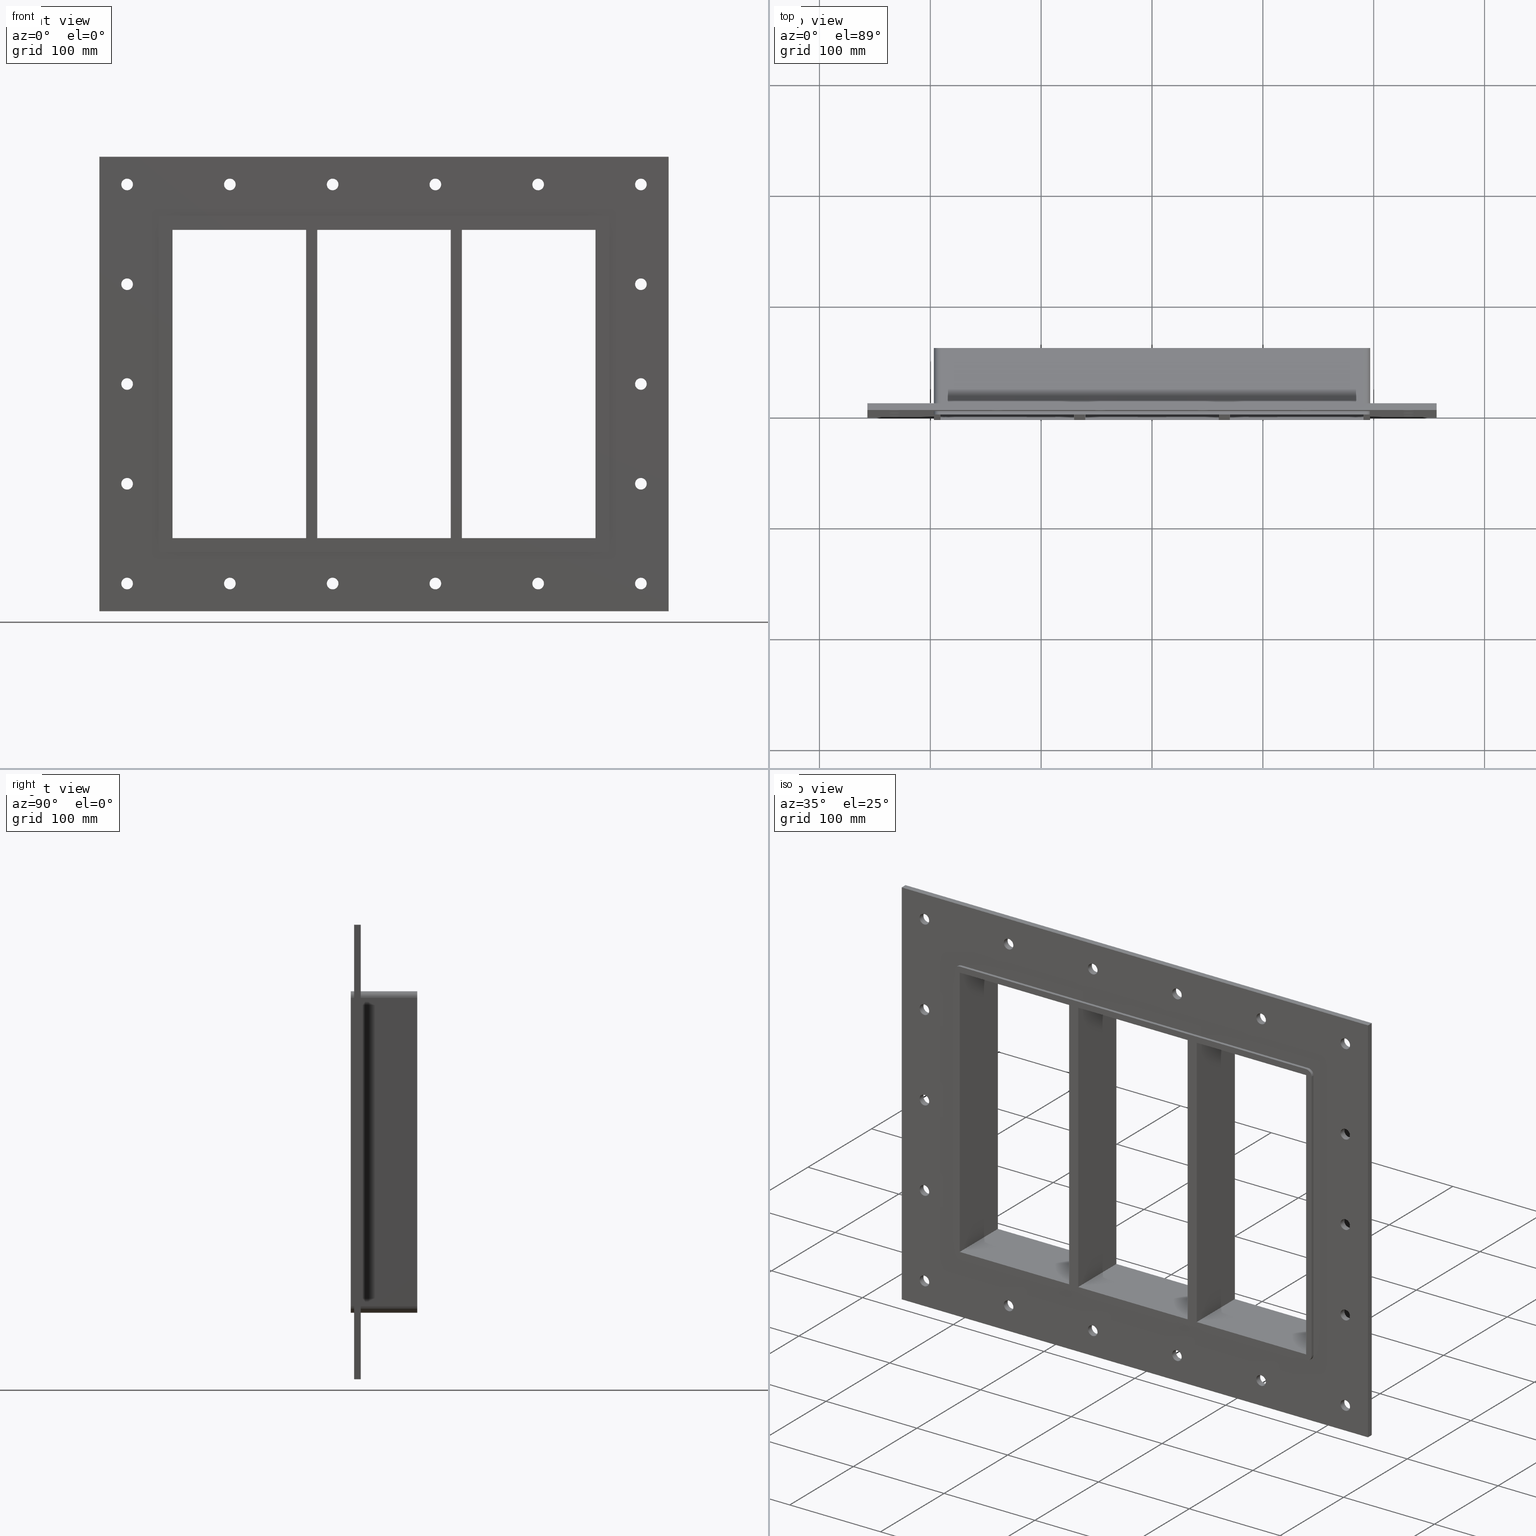
[diagram: canonical four-view strip — front | top / right | iso, engineering-drawing reading convention]
A machine part, canonical four-view strip (front | top / right | iso — engineering-drawing reading convention). The complete STEP part file that produces these views, byte-faithful:
ISO-10303-21;
HEADER;
/****************************************************************
 * Generated by software with PDElib inside                    *
 * PDElib Version v51a, created Wed 11/30/2011                  *
 * ITI Transcendata (http://www.transcendata.com/)              *
 ****************************************************************/
FILE_DESCRIPTION((''),'2;1');
FILE_NAME('N:\\Projects\\Ongoing_Projects\\12403 Transit Designer\\Product-data\\Product Data\\Transit designer Cad Generator\\CreatedFiles\\STEP\\GHM8X3.stp','2015-01-12T11:18:42',(''),(''),'Autodesk Inventor 2013','Autodesk Inventor 2013','');
FILE_SCHEMA(('AUTOMOTIVE_DESIGN { 1 0 10303 214 1 1 1 1 }'));
ENDSEC;
DATA;
#5=APPLICATION_CONTEXT('automotive design');
#6=APPLICATION_PROTOCOL_DEFINITION('International Standard','automotive_design',2001,#5);
#7=PRODUCT_CONTEXT('',#5,'mechanical');
#8=PRODUCT('GHM-ISO','GHM-ISO',$,(#7));
#9=PRODUCT_RELATED_PRODUCT_CATEGORY('part',$,(#8));
#10=PRODUCT_DEFINITION_FORMATION('',$,#8);
#11=PRODUCT_DEFINITION_CONTEXT('part definition',#5,'design');
#12=PRODUCT_DEFINITION('',$,#10,#11);
#18=(NAMED_UNIT(*)PLANE_ANGLE_UNIT()SI_UNIT($,.RADIAN.));
#19=DIMENSIONAL_EXPONENTS(0.0,0.0,0.0,0.0,0.0,0.0,0.0);
#20=PLANE_ANGLE_MEASURE_WITH_UNIT(PLANE_ANGLE_MEASURE(0.0174532925),#18);
#24=(CONVERSION_BASED_UNIT('DEGREE',#20)NAMED_UNIT(#19)PLANE_ANGLE_UNIT());
#28=(NAMED_UNIT(*)SI_UNIT($,.STERADIAN.)SOLID_ANGLE_UNIT());
#32=(LENGTH_UNIT()NAMED_UNIT(*)SI_UNIT(.MILLI.,.METRE.));
#34=UNCERTAINTY_MEASURE_WITH_UNIT(LENGTH_MEASURE(0.01),#32,'DISTANCE_ACCURACY_VALUE','');
#36=(GEOMETRIC_REPRESENTATION_CONTEXT(3)GLOBAL_UNCERTAINTY_ASSIGNED_CONTEXT((#34))GLOBAL_UNIT_ASSIGNED_CONTEXT((#24,#28,#32))REPRESENTATION_CONTEXT('None','None'));
#37=AXIS2_PLACEMENT_3D('',#38,#39,#40);
#38=CARTESIAN_POINT('',(0.0,0.0,0.0));
#39=DIRECTION('',(0.0,0.0,1.0));
#40=DIRECTION('',(1.0,0.0,0.0));
#41=SHAPE_REPRESENTATION('',(#37),#36);
#42=PRODUCT_DEFINITION_SHAPE('','',#12);
#43=SHAPE_DEFINITION_REPRESENTATION(#42,#41);
#49=(NAMED_UNIT(*)PLANE_ANGLE_UNIT()SI_UNIT($,.RADIAN.));
#50=DIMENSIONAL_EXPONENTS(0.0,0.0,0.0,0.0,0.0,0.0,0.0);
#51=PLANE_ANGLE_MEASURE_WITH_UNIT(PLANE_ANGLE_MEASURE(0.0174532925),#49);
#55=(CONVERSION_BASED_UNIT('DEGREE',#51)NAMED_UNIT(#50)PLANE_ANGLE_UNIT());
#59=(NAMED_UNIT(*)SI_UNIT($,.STERADIAN.)SOLID_ANGLE_UNIT());
#63=(LENGTH_UNIT()NAMED_UNIT(*)SI_UNIT(.MILLI.,.METRE.));
#65=UNCERTAINTY_MEASURE_WITH_UNIT(LENGTH_MEASURE(0.000001),#63,'DISTANCE_ACCURACY_VALUE','');
#67=(GEOMETRIC_REPRESENTATION_CONTEXT(3)GLOBAL_UNCERTAINTY_ASSIGNED_CONTEXT((#65))GLOBAL_UNIT_ASSIGNED_CONTEXT((#55,#59,#63))REPRESENTATION_CONTEXT('','3D'));
#68=CARTESIAN_POINT('',(-231.75000000000011,659.8350172581022,-179.99999999999997));
#69=DIRECTION('',(0.0,-1.0,0.0));
#70=DIRECTION('',(1.0,0.0,0.0));
#71=AXIS2_PLACEMENT_3D('',#68,#69,#70);
#72=CYLINDRICAL_SURFACE('',#71,5.25);
#73=CARTESIAN_POINT('',(-237.00000000000011,5.999999999999943,-179.99999999999997));
#74=VERTEX_POINT('',#73);
#75=CARTESIAN_POINT('',(-231.75000000000011,5.999999999999943,-179.99999999999997));
#76=DIRECTION('',(0.0,-1.0,0.0));
#77=DIRECTION('',(1.0,0.0,0.0));
#78=AXIS2_PLACEMENT_3D('',#75,#76,#77);
#79=CIRCLE('',#78,5.25);
#80=EDGE_CURVE('',#74,#74,#79,.T.);
#81=ORIENTED_EDGE('',*,*,#80,.F.);
#82=EDGE_LOOP('',(#81));
#83=FACE_OUTER_BOUND('',#82,.T.);
#84=CARTESIAN_POINT('',(-226.50000000000011,0.0,-179.99999999999997));
#85=VERTEX_POINT('',#84);
#86=CARTESIAN_POINT('',(-231.75000000000011,0.0,-179.99999999999997));
#87=DIRECTION('',(0.0,1.0,0.0));
#88=DIRECTION('',(1.0,0.0,0.0));
#89=AXIS2_PLACEMENT_3D('',#86,#87,#88);
#90=CIRCLE('',#89,5.25);
#91=EDGE_CURVE('',#85,#85,#90,.T.);
#92=ORIENTED_EDGE('',*,*,#91,.F.);
#93=EDGE_LOOP('',(#92));
#94=FACE_BOUND('',#93,.T.);
#95=ADVANCED_FACE('',(#83,#94),#72,.F.);
#96=CARTESIAN_POINT('',(231.74999999999997,659.8350172581022,-89.999999999999972));
#97=DIRECTION('',(0.0,-1.0,0.0));
#98=DIRECTION('',(1.0,0.0,0.0));
#99=AXIS2_PLACEMENT_3D('',#96,#97,#98);
#100=CYLINDRICAL_SURFACE('',#99,5.25);
#101=CARTESIAN_POINT('',(226.5,5.999999999999943,-89.999999999999972));
#102=VERTEX_POINT('',#101);
#103=CARTESIAN_POINT('',(231.74999999999997,5.999999999999943,-89.999999999999972));
#104=DIRECTION('',(0.0,-1.0,0.0));
#105=DIRECTION('',(1.0,0.0,0.0));
#106=AXIS2_PLACEMENT_3D('',#103,#104,#105);
#107=CIRCLE('',#106,5.25);
#108=EDGE_CURVE('',#102,#102,#107,.T.);
#109=ORIENTED_EDGE('',*,*,#108,.F.);
#110=EDGE_LOOP('',(#109));
#111=FACE_OUTER_BOUND('',#110,.T.);
#112=CARTESIAN_POINT('',(236.99999999999994,0.0,-89.999999999999972));
#113=VERTEX_POINT('',#112);
#114=CARTESIAN_POINT('',(231.74999999999997,0.0,-89.999999999999972));
#115=DIRECTION('',(0.0,1.0,0.0));
#116=DIRECTION('',(1.0,0.0,0.0));
#117=AXIS2_PLACEMENT_3D('',#114,#115,#116);
#118=CIRCLE('',#117,5.25);
#119=EDGE_CURVE('',#113,#113,#118,.T.);
#120=ORIENTED_EDGE('',*,*,#119,.F.);
#121=EDGE_LOOP('',(#120));
#122=FACE_BOUND('',#121,.T.);
#123=ADVANCED_FACE('',(#111,#122),#100,.F.);
#124=CARTESIAN_POINT('',(-231.75000000000011,659.8350172581022,-89.999999999999972));
#125=DIRECTION('',(0.0,-1.0,0.0));
#126=DIRECTION('',(1.0,0.0,0.0));
#127=AXIS2_PLACEMENT_3D('',#124,#125,#126);
#128=CYLINDRICAL_SURFACE('',#127,5.25);
#129=CARTESIAN_POINT('',(-237.00000000000011,5.999999999999943,-89.999999999999972));
#130=VERTEX_POINT('',#129);
#131=CARTESIAN_POINT('',(-231.75000000000011,5.999999999999943,-89.999999999999972));
#132=DIRECTION('',(0.0,-1.0,0.0));
#133=DIRECTION('',(1.0,0.0,0.0));
#134=AXIS2_PLACEMENT_3D('',#131,#132,#133);
#135=CIRCLE('',#134,5.25);
#136=EDGE_CURVE('',#130,#130,#135,.T.);
#137=ORIENTED_EDGE('',*,*,#136,.F.);
#138=EDGE_LOOP('',(#137));
#139=FACE_OUTER_BOUND('',#138,.T.);
#140=CARTESIAN_POINT('',(-226.50000000000011,0.0,-89.999999999999972));
#141=VERTEX_POINT('',#140);
#142=CARTESIAN_POINT('',(-231.75000000000011,0.0,-89.999999999999972));
#143=DIRECTION('',(0.0,1.0,0.0));
#144=DIRECTION('',(1.0,0.0,0.0));
#145=AXIS2_PLACEMENT_3D('',#142,#143,#144);
#146=CIRCLE('',#145,5.25);
#147=EDGE_CURVE('',#141,#141,#146,.T.);
#148=ORIENTED_EDGE('',*,*,#147,.F.);
#149=EDGE_LOOP('',(#148));
#150=FACE_BOUND('',#149,.T.);
#151=ADVANCED_FACE('',(#139,#150),#128,.F.);
#152=CARTESIAN_POINT('',(231.74999999999997,659.8350172581022,3.552714E-014));
#153=DIRECTION('',(0.0,-1.0,0.0));
#154=DIRECTION('',(1.0,0.0,0.0));
#155=AXIS2_PLACEMENT_3D('',#152,#153,#154);
#156=CYLINDRICAL_SURFACE('',#155,5.25);
#157=CARTESIAN_POINT('',(226.5,5.999999999999943,3.552714E-014));
#158=VERTEX_POINT('',#157);
#159=CARTESIAN_POINT('',(231.74999999999997,5.999999999999943,3.552714E-014));
#160=DIRECTION('',(0.0,-1.0,0.0));
#161=DIRECTION('',(1.0,0.0,0.0));
#162=AXIS2_PLACEMENT_3D('',#159,#160,#161);
#163=CIRCLE('',#162,5.25);
#164=EDGE_CURVE('',#158,#158,#163,.T.);
#165=ORIENTED_EDGE('',*,*,#164,.F.);
#166=EDGE_LOOP('',(#165));
#167=FACE_OUTER_BOUND('',#166,.T.);
#168=CARTESIAN_POINT('',(236.99999999999994,0.0,3.552714E-014));
#169=VERTEX_POINT('',#168);
#170=CARTESIAN_POINT('',(231.74999999999997,0.0,3.552714E-014));
#171=DIRECTION('',(0.0,1.0,0.0));
#172=DIRECTION('',(1.0,0.0,0.0));
#173=AXIS2_PLACEMENT_3D('',#170,#171,#172);
#174=CIRCLE('',#173,5.25);
#175=EDGE_CURVE('',#169,#169,#174,.T.);
#176=ORIENTED_EDGE('',*,*,#175,.F.);
#177=EDGE_LOOP('',(#176));
#178=FACE_BOUND('',#177,.T.);
#179=ADVANCED_FACE('',(#167,#178),#156,.F.);
#180=CARTESIAN_POINT('',(-231.75000000000011,659.8350172581022,3.552714E-014));
#181=DIRECTION('',(0.0,-1.0,0.0));
#182=DIRECTION('',(1.0,0.0,0.0));
#183=AXIS2_PLACEMENT_3D('',#180,#181,#182);
#184=CYLINDRICAL_SURFACE('',#183,5.25);
#185=CARTESIAN_POINT('',(-237.00000000000011,5.999999999999943,3.552714E-014));
#186=VERTEX_POINT('',#185);
#187=CARTESIAN_POINT('',(-231.75000000000011,5.999999999999943,3.552714E-014));
#188=DIRECTION('',(0.0,-1.0,0.0));
#189=DIRECTION('',(1.0,0.0,0.0));
#190=AXIS2_PLACEMENT_3D('',#187,#188,#189);
#191=CIRCLE('',#190,5.25);
#192=EDGE_CURVE('',#186,#186,#191,.T.);
#193=ORIENTED_EDGE('',*,*,#192,.F.);
#194=EDGE_LOOP('',(#193));
#195=FACE_OUTER_BOUND('',#194,.T.);
#196=CARTESIAN_POINT('',(-226.50000000000011,0.0,3.552714E-014));
#197=VERTEX_POINT('',#196);
#198=CARTESIAN_POINT('',(-231.75000000000011,0.0,3.552714E-014));
#199=DIRECTION('',(0.0,1.0,0.0));
#200=DIRECTION('',(1.0,0.0,0.0));
#201=AXIS2_PLACEMENT_3D('',#198,#199,#200);
#202=CIRCLE('',#201,5.25);
#203=EDGE_CURVE('',#197,#197,#202,.T.);
#204=ORIENTED_EDGE('',*,*,#203,.F.);
#205=EDGE_LOOP('',(#204));
#206=FACE_BOUND('',#205,.T.);
#207=ADVANCED_FACE('',(#195,#206),#184,.F.);
#208=CARTESIAN_POINT('',(231.74999999999997,659.8350172581022,90.000000000000028));
#209=DIRECTION('',(0.0,-1.0,0.0));
#210=DIRECTION('',(1.0,0.0,0.0));
#211=AXIS2_PLACEMENT_3D('',#208,#209,#210);
#212=CYLINDRICAL_SURFACE('',#211,5.25);
#213=CARTESIAN_POINT('',(226.5,5.999999999999943,90.000000000000028));
#214=VERTEX_POINT('',#213);
#215=CARTESIAN_POINT('',(231.74999999999997,5.999999999999943,90.000000000000028));
#216=DIRECTION('',(0.0,-1.0,0.0));
#217=DIRECTION('',(1.0,0.0,0.0));
#218=AXIS2_PLACEMENT_3D('',#215,#216,#217);
#219=CIRCLE('',#218,5.25);
#220=EDGE_CURVE('',#214,#214,#219,.T.);
#221=ORIENTED_EDGE('',*,*,#220,.F.);
#222=EDGE_LOOP('',(#221));
#223=FACE_OUTER_BOUND('',#222,.T.);
#224=CARTESIAN_POINT('',(236.99999999999994,0.0,90.000000000000028));
#225=VERTEX_POINT('',#224);
#226=CARTESIAN_POINT('',(231.74999999999997,0.0,90.000000000000028));
#227=DIRECTION('',(0.0,1.0,0.0));
#228=DIRECTION('',(1.0,0.0,0.0));
#229=AXIS2_PLACEMENT_3D('',#226,#227,#228);
#230=CIRCLE('',#229,5.25);
#231=EDGE_CURVE('',#225,#225,#230,.T.);
#232=ORIENTED_EDGE('',*,*,#231,.F.);
#233=EDGE_LOOP('',(#232));
#234=FACE_BOUND('',#233,.T.);
#235=ADVANCED_FACE('',(#223,#234),#212,.F.);
#236=CARTESIAN_POINT('',(-231.75000000000011,659.8350172581022,90.000000000000028));
#237=DIRECTION('',(0.0,-1.0,0.0));
#238=DIRECTION('',(1.0,0.0,0.0));
#239=AXIS2_PLACEMENT_3D('',#236,#237,#238);
#240=CYLINDRICAL_SURFACE('',#239,5.25);
#241=CARTESIAN_POINT('',(-237.00000000000011,5.999999999999943,90.000000000000028));
#242=VERTEX_POINT('',#241);
#243=CARTESIAN_POINT('',(-231.75000000000011,5.999999999999943,90.000000000000028));
#244=DIRECTION('',(0.0,-1.0,0.0));
#245=DIRECTION('',(1.0,0.0,0.0));
#246=AXIS2_PLACEMENT_3D('',#243,#244,#245);
#247=CIRCLE('',#246,5.25);
#248=EDGE_CURVE('',#242,#242,#247,.T.);
#249=ORIENTED_EDGE('',*,*,#248,.F.);
#250=EDGE_LOOP('',(#249));
#251=FACE_OUTER_BOUND('',#250,.T.);
#252=CARTESIAN_POINT('',(-226.50000000000011,0.0,90.000000000000028));
#253=VERTEX_POINT('',#252);
#254=CARTESIAN_POINT('',(-231.75000000000011,0.0,90.000000000000028));
#255=DIRECTION('',(0.0,1.0,0.0));
#256=DIRECTION('',(1.0,0.0,0.0));
#257=AXIS2_PLACEMENT_3D('',#254,#255,#256);
#258=CIRCLE('',#257,5.25);
#259=EDGE_CURVE('',#253,#253,#258,.T.);
#260=ORIENTED_EDGE('',*,*,#259,.F.);
#261=EDGE_LOOP('',(#260));
#262=FACE_BOUND('',#261,.T.);
#263=ADVANCED_FACE('',(#251,#262),#240,.F.);
#264=CARTESIAN_POINT('',(-139.05000000000007,659.8350172581022,180.00000000000003));
#265=DIRECTION('',(0.0,-1.0,0.0));
#266=DIRECTION('',(1.0,0.0,0.0));
#267=AXIS2_PLACEMENT_3D('',#264,#265,#266);
#268=CYLINDRICAL_SURFACE('',#267,5.25);
#269=CARTESIAN_POINT('',(-144.30000000000004,5.999999999999943,180.00000000000003));
#270=VERTEX_POINT('',#269);
#271=CARTESIAN_POINT('',(-139.05000000000007,5.999999999999943,180.00000000000003));
#272=DIRECTION('',(0.0,-1.0,0.0));
#273=DIRECTION('',(1.0,0.0,0.0));
#274=AXIS2_PLACEMENT_3D('',#271,#272,#273);
#275=CIRCLE('',#274,5.25);
#276=EDGE_CURVE('',#270,#270,#275,.T.);
#277=ORIENTED_EDGE('',*,*,#276,.F.);
#278=EDGE_LOOP('',(#277));
#279=FACE_OUTER_BOUND('',#278,.T.);
#280=CARTESIAN_POINT('',(-133.80000000000007,0.0,180.00000000000003));
#281=VERTEX_POINT('',#280);
#282=CARTESIAN_POINT('',(-139.05000000000007,0.0,180.00000000000003));
#283=DIRECTION('',(0.0,1.0,0.0));
#284=DIRECTION('',(1.0,0.0,0.0));
#285=AXIS2_PLACEMENT_3D('',#282,#283,#284);
#286=CIRCLE('',#285,5.25);
#287=EDGE_CURVE('',#281,#281,#286,.T.);
#288=ORIENTED_EDGE('',*,*,#287,.F.);
#289=EDGE_LOOP('',(#288));
#290=FACE_BOUND('',#289,.T.);
#291=ADVANCED_FACE('',(#279,#290),#268,.F.);
#292=CARTESIAN_POINT('',(-139.05000000000007,659.8350172581022,-179.99999999999997));
#293=DIRECTION('',(0.0,-1.0,0.0));
#294=DIRECTION('',(1.0,0.0,0.0));
#295=AXIS2_PLACEMENT_3D('',#292,#293,#294);
#296=CYLINDRICAL_SURFACE('',#295,5.25);
#297=CARTESIAN_POINT('',(-144.30000000000004,5.999999999999943,-179.99999999999997));
#298=VERTEX_POINT('',#297);
#299=CARTESIAN_POINT('',(-139.05000000000007,5.999999999999943,-179.99999999999997));
#300=DIRECTION('',(0.0,-1.0,0.0));
#301=DIRECTION('',(1.0,0.0,0.0));
#302=AXIS2_PLACEMENT_3D('',#299,#300,#301);
#303=CIRCLE('',#302,5.25);
#304=EDGE_CURVE('',#298,#298,#303,.T.);
#305=ORIENTED_EDGE('',*,*,#304,.F.);
#306=EDGE_LOOP('',(#305));
#307=FACE_OUTER_BOUND('',#306,.T.);
#308=CARTESIAN_POINT('',(-133.80000000000007,0.0,-179.99999999999997));
#309=VERTEX_POINT('',#308);
#310=CARTESIAN_POINT('',(-139.05000000000007,0.0,-179.99999999999997));
#311=DIRECTION('',(0.0,1.0,0.0));
#312=DIRECTION('',(1.0,0.0,0.0));
#313=AXIS2_PLACEMENT_3D('',#310,#311,#312);
#314=CIRCLE('',#313,5.25);
#315=EDGE_CURVE('',#309,#309,#314,.T.);
#316=ORIENTED_EDGE('',*,*,#315,.F.);
#317=EDGE_LOOP('',(#316));
#318=FACE_BOUND('',#317,.T.);
#319=ADVANCED_FACE('',(#307,#318),#296,.F.);
#320=CARTESIAN_POINT('',(-46.350000000000037,659.8350172581022,180.00000000000003));
#321=DIRECTION('',(0.0,-1.0,0.0));
#322=DIRECTION('',(1.0,0.0,0.0));
#323=AXIS2_PLACEMENT_3D('',#320,#321,#322);
#324=CYLINDRICAL_SURFACE('',#323,5.25);
#325=CARTESIAN_POINT('',(-51.600000000000023,5.999999999999943,180.00000000000003));
#326=VERTEX_POINT('',#325);
#327=CARTESIAN_POINT('',(-46.350000000000037,5.999999999999943,180.00000000000003));
#328=DIRECTION('',(0.0,-1.0,0.0));
#329=DIRECTION('',(1.0,0.0,0.0));
#330=AXIS2_PLACEMENT_3D('',#327,#328,#329);
#331=CIRCLE('',#330,5.25);
#332=EDGE_CURVE('',#326,#326,#331,.T.);
#333=ORIENTED_EDGE('',*,*,#332,.F.);
#334=EDGE_LOOP('',(#333));
#335=FACE_OUTER_BOUND('',#334,.T.);
#336=CARTESIAN_POINT('',(-41.100000000000051,0.0,180.00000000000003));
#337=VERTEX_POINT('',#336);
#338=CARTESIAN_POINT('',(-46.350000000000037,0.0,180.00000000000003));
#339=DIRECTION('',(0.0,1.0,0.0));
#340=DIRECTION('',(1.0,0.0,0.0));
#341=AXIS2_PLACEMENT_3D('',#338,#339,#340);
#342=CIRCLE('',#341,5.25);
#343=EDGE_CURVE('',#337,#337,#342,.T.);
#344=ORIENTED_EDGE('',*,*,#343,.F.);
#345=EDGE_LOOP('',(#344));
#346=FACE_BOUND('',#345,.T.);
#347=ADVANCED_FACE('',(#335,#346),#324,.F.);
#348=CARTESIAN_POINT('',(-46.350000000000037,659.8350172581022,-179.99999999999997));
#349=DIRECTION('',(0.0,-1.0,0.0));
#350=DIRECTION('',(1.0,0.0,0.0));
#351=AXIS2_PLACEMENT_3D('',#348,#349,#350);
#352=CYLINDRICAL_SURFACE('',#351,5.25);
#353=CARTESIAN_POINT('',(-51.600000000000023,5.999999999999943,-179.99999999999997));
#354=VERTEX_POINT('',#353);
#355=CARTESIAN_POINT('',(-46.350000000000037,5.999999999999943,-179.99999999999997));
#356=DIRECTION('',(0.0,-1.0,0.0));
#357=DIRECTION('',(1.0,0.0,0.0));
#358=AXIS2_PLACEMENT_3D('',#355,#356,#357);
#359=CIRCLE('',#358,5.25);
#360=EDGE_CURVE('',#354,#354,#359,.T.);
#361=ORIENTED_EDGE('',*,*,#360,.F.);
#362=EDGE_LOOP('',(#361));
#363=FACE_OUTER_BOUND('',#362,.T.);
#364=CARTESIAN_POINT('',(-41.100000000000051,0.0,-179.99999999999997));
#365=VERTEX_POINT('',#364);
#366=CARTESIAN_POINT('',(-46.350000000000037,0.0,-179.99999999999997));
#367=DIRECTION('',(0.0,1.0,0.0));
#368=DIRECTION('',(1.0,0.0,0.0));
#369=AXIS2_PLACEMENT_3D('',#366,#367,#368);
#370=CIRCLE('',#369,5.25);
#371=EDGE_CURVE('',#365,#365,#370,.T.);
#372=ORIENTED_EDGE('',*,*,#371,.F.);
#373=EDGE_LOOP('',(#372));
#374=FACE_BOUND('',#373,.T.);
#375=ADVANCED_FACE('',(#363,#374),#352,.F.);
#376=CARTESIAN_POINT('',(46.349999999999945,659.8350172581022,180.00000000000003));
#377=DIRECTION('',(0.0,-1.0,0.0));
#378=DIRECTION('',(1.0,0.0,0.0));
#379=AXIS2_PLACEMENT_3D('',#376,#377,#378);
#380=CYLINDRICAL_SURFACE('',#379,5.25);
#381=CARTESIAN_POINT('',(41.099999999999959,5.999999999999943,180.00000000000003));
#382=VERTEX_POINT('',#381);
#383=CARTESIAN_POINT('',(46.349999999999945,5.999999999999943,180.00000000000003));
#384=DIRECTION('',(0.0,-1.0,0.0));
#385=DIRECTION('',(1.0,0.0,0.0));
#386=AXIS2_PLACEMENT_3D('',#383,#384,#385);
#387=CIRCLE('',#386,5.25);
#388=EDGE_CURVE('',#382,#382,#387,.T.);
#389=ORIENTED_EDGE('',*,*,#388,.F.);
#390=EDGE_LOOP('',(#389));
#391=FACE_OUTER_BOUND('',#390,.T.);
#392=CARTESIAN_POINT('',(51.59999999999993,0.0,180.00000000000003));
#393=VERTEX_POINT('',#392);
#394=CARTESIAN_POINT('',(46.349999999999945,0.0,180.00000000000003));
#395=DIRECTION('',(0.0,1.0,0.0));
#396=DIRECTION('',(1.0,0.0,0.0));
#397=AXIS2_PLACEMENT_3D('',#394,#395,#396);
#398=CIRCLE('',#397,5.25);
#399=EDGE_CURVE('',#393,#393,#398,.T.);
#400=ORIENTED_EDGE('',*,*,#399,.F.);
#401=EDGE_LOOP('',(#400));
#402=FACE_BOUND('',#401,.T.);
#403=ADVANCED_FACE('',(#391,#402),#380,.F.);
#404=CARTESIAN_POINT('',(46.349999999999945,659.8350172581022,-179.99999999999997));
#405=DIRECTION('',(0.0,-1.0,0.0));
#406=DIRECTION('',(1.0,0.0,0.0));
#407=AXIS2_PLACEMENT_3D('',#404,#405,#406);
#408=CYLINDRICAL_SURFACE('',#407,5.25);
#409=CARTESIAN_POINT('',(41.099999999999959,5.999999999999943,-179.99999999999997));
#410=VERTEX_POINT('',#409);
#411=CARTESIAN_POINT('',(46.349999999999945,5.999999999999943,-179.99999999999997));
#412=DIRECTION('',(0.0,-1.0,0.0));
#413=DIRECTION('',(1.0,0.0,0.0));
#414=AXIS2_PLACEMENT_3D('',#411,#412,#413);
#415=CIRCLE('',#414,5.25);
#416=EDGE_CURVE('',#410,#410,#415,.T.);
#417=ORIENTED_EDGE('',*,*,#416,.F.);
#418=EDGE_LOOP('',(#417));
#419=FACE_OUTER_BOUND('',#418,.T.);
#420=CARTESIAN_POINT('',(51.59999999999993,0.0,-179.99999999999997));
#421=VERTEX_POINT('',#420);
#422=CARTESIAN_POINT('',(46.349999999999945,0.0,-179.99999999999997));
#423=DIRECTION('',(0.0,1.0,0.0));
#424=DIRECTION('',(1.0,0.0,0.0));
#425=AXIS2_PLACEMENT_3D('',#422,#423,#424);
#426=CIRCLE('',#425,5.25);
#427=EDGE_CURVE('',#421,#421,#426,.T.);
#428=ORIENTED_EDGE('',*,*,#427,.F.);
#429=EDGE_LOOP('',(#428));
#430=FACE_BOUND('',#429,.T.);
#431=ADVANCED_FACE('',(#419,#430),#408,.F.);
#432=CARTESIAN_POINT('',(139.04999999999995,659.8350172581022,180.00000000000003));
#433=DIRECTION('',(0.0,-1.0,0.0));
#434=DIRECTION('',(1.0,0.0,0.0));
#435=AXIS2_PLACEMENT_3D('',#432,#433,#434);
#436=CYLINDRICAL_SURFACE('',#435,5.25);
#437=CARTESIAN_POINT('',(133.79999999999998,5.999999999999943,180.00000000000003));
#438=VERTEX_POINT('',#437);
#439=CARTESIAN_POINT('',(139.04999999999995,5.999999999999943,180.00000000000003));
#440=DIRECTION('',(0.0,-1.0,0.0));
#441=DIRECTION('',(1.0,0.0,0.0));
#442=AXIS2_PLACEMENT_3D('',#439,#440,#441);
#443=CIRCLE('',#442,5.25);
#444=EDGE_CURVE('',#438,#438,#443,.T.);
#445=ORIENTED_EDGE('',*,*,#444,.F.);
#446=EDGE_LOOP('',(#445));
#447=FACE_OUTER_BOUND('',#446,.T.);
#448=CARTESIAN_POINT('',(144.29999999999995,0.0,180.00000000000003));
#449=VERTEX_POINT('',#448);
#450=CARTESIAN_POINT('',(139.04999999999995,0.0,180.00000000000003));
#451=DIRECTION('',(0.0,1.0,0.0));
#452=DIRECTION('',(1.0,0.0,0.0));
#453=AXIS2_PLACEMENT_3D('',#450,#451,#452);
#454=CIRCLE('',#453,5.25);
#455=EDGE_CURVE('',#449,#449,#454,.T.);
#456=ORIENTED_EDGE('',*,*,#455,.F.);
#457=EDGE_LOOP('',(#456));
#458=FACE_BOUND('',#457,.T.);
#459=ADVANCED_FACE('',(#447,#458),#436,.F.);
#460=CARTESIAN_POINT('',(139.04999999999995,659.8350172581022,-179.99999999999997));
#461=DIRECTION('',(0.0,-1.0,0.0));
#462=DIRECTION('',(1.0,0.0,0.0));
#463=AXIS2_PLACEMENT_3D('',#460,#461,#462);
#464=CYLINDRICAL_SURFACE('',#463,5.25);
#465=CARTESIAN_POINT('',(133.79999999999998,5.999999999999943,-179.99999999999997));
#466=VERTEX_POINT('',#465);
#467=CARTESIAN_POINT('',(139.04999999999995,5.999999999999943,-179.99999999999997));
#468=DIRECTION('',(0.0,-1.0,0.0));
#469=DIRECTION('',(1.0,0.0,0.0));
#470=AXIS2_PLACEMENT_3D('',#467,#468,#469);
#471=CIRCLE('',#470,5.25);
#472=EDGE_CURVE('',#466,#466,#471,.T.);
#473=ORIENTED_EDGE('',*,*,#472,.F.);
#474=EDGE_LOOP('',(#473));
#475=FACE_OUTER_BOUND('',#474,.T.);
#476=CARTESIAN_POINT('',(144.29999999999995,0.0,-179.99999999999997));
#477=VERTEX_POINT('',#476);
#478=CARTESIAN_POINT('',(139.04999999999995,0.0,-179.99999999999997));
#479=DIRECTION('',(0.0,1.0,0.0));
#480=DIRECTION('',(1.0,0.0,0.0));
#481=AXIS2_PLACEMENT_3D('',#478,#479,#480);
#482=CIRCLE('',#481,5.25);
#483=EDGE_CURVE('',#477,#477,#482,.T.);
#484=ORIENTED_EDGE('',*,*,#483,.F.);
#485=EDGE_LOOP('',(#484));
#486=FACE_BOUND('',#485,.T.);
#487=ADVANCED_FACE('',(#475,#486),#464,.F.);
#488=CARTESIAN_POINT('',(231.74999999999997,659.8350172581022,-179.99999999999997));
#489=DIRECTION('',(0.0,-1.0,0.0));
#490=DIRECTION('',(1.0,0.0,0.0));
#491=AXIS2_PLACEMENT_3D('',#488,#489,#490);
#492=CYLINDRICAL_SURFACE('',#491,5.25);
#493=CARTESIAN_POINT('',(226.5,5.999999999999943,-179.99999999999997));
#494=VERTEX_POINT('',#493);
#495=CARTESIAN_POINT('',(231.74999999999997,5.999999999999943,-179.99999999999997));
#496=DIRECTION('',(0.0,-1.0,0.0));
#497=DIRECTION('',(1.0,0.0,0.0));
#498=AXIS2_PLACEMENT_3D('',#495,#496,#497);
#499=CIRCLE('',#498,5.25);
#500=EDGE_CURVE('',#494,#494,#499,.T.);
#501=ORIENTED_EDGE('',*,*,#500,.F.);
#502=EDGE_LOOP('',(#501));
#503=FACE_OUTER_BOUND('',#502,.T.);
#504=CARTESIAN_POINT('',(236.99999999999994,0.0,-179.99999999999997));
#505=VERTEX_POINT('',#504);
#506=CARTESIAN_POINT('',(231.74999999999997,0.0,-179.99999999999997));
#507=DIRECTION('',(0.0,1.0,0.0));
#508=DIRECTION('',(1.0,0.0,0.0));
#509=AXIS2_PLACEMENT_3D('',#506,#507,#508);
#510=CIRCLE('',#509,5.25);
#511=EDGE_CURVE('',#505,#505,#510,.T.);
#512=ORIENTED_EDGE('',*,*,#511,.F.);
#513=EDGE_LOOP('',(#512));
#514=FACE_BOUND('',#513,.T.);
#515=ADVANCED_FACE('',(#503,#514),#492,.F.);
#516=CARTESIAN_POINT('',(-231.75000000000011,659.8350172581022,180.00000000000003));
#517=DIRECTION('',(0.0,-1.0,0.0));
#518=DIRECTION('',(1.0,0.0,0.0));
#519=AXIS2_PLACEMENT_3D('',#516,#517,#518);
#520=CYLINDRICAL_SURFACE('',#519,5.25);
#521=CARTESIAN_POINT('',(-237.00000000000011,5.999999999999943,180.00000000000003));
#522=VERTEX_POINT('',#521);
#523=CARTESIAN_POINT('',(-231.75000000000011,5.999999999999943,180.00000000000003));
#524=DIRECTION('',(0.0,-1.0,0.0));
#525=DIRECTION('',(1.0,0.0,0.0));
#526=AXIS2_PLACEMENT_3D('',#523,#524,#525);
#527=CIRCLE('',#526,5.25);
#528=EDGE_CURVE('',#522,#522,#527,.T.);
#529=ORIENTED_EDGE('',*,*,#528,.F.);
#530=EDGE_LOOP('',(#529));
#531=FACE_OUTER_BOUND('',#530,.T.);
#532=CARTESIAN_POINT('',(-226.50000000000011,0.0,180.00000000000003));
#533=VERTEX_POINT('',#532);
#534=CARTESIAN_POINT('',(-231.75000000000011,0.0,180.00000000000003));
#535=DIRECTION('',(0.0,1.0,0.0));
#536=DIRECTION('',(1.0,0.0,0.0));
#537=AXIS2_PLACEMENT_3D('',#534,#535,#536);
#538=CIRCLE('',#537,5.25);
#539=EDGE_CURVE('',#533,#533,#538,.T.);
#540=ORIENTED_EDGE('',*,*,#539,.F.);
#541=EDGE_LOOP('',(#540));
#542=FACE_BOUND('',#541,.T.);
#543=ADVANCED_FACE('',(#531,#542),#520,.F.);
#544=CARTESIAN_POINT('',(231.74999999999997,659.8350172581022,180.00000000000003));
#545=DIRECTION('',(0.0,-1.0,0.0));
#546=DIRECTION('',(1.0,0.0,0.0));
#547=AXIS2_PLACEMENT_3D('',#544,#545,#546);
#548=CYLINDRICAL_SURFACE('',#547,5.25);
#549=CARTESIAN_POINT('',(226.5,5.999999999999943,180.00000000000003));
#550=VERTEX_POINT('',#549);
#551=CARTESIAN_POINT('',(231.74999999999997,5.999999999999943,180.00000000000003));
#552=DIRECTION('',(0.0,-1.0,0.0));
#553=DIRECTION('',(1.0,0.0,0.0));
#554=AXIS2_PLACEMENT_3D('',#551,#552,#553);
#555=CIRCLE('',#554,5.25);
#556=EDGE_CURVE('',#550,#550,#555,.T.);
#557=ORIENTED_EDGE('',*,*,#556,.F.);
#558=EDGE_LOOP('',(#557));
#559=FACE_OUTER_BOUND('',#558,.T.);
#560=CARTESIAN_POINT('',(236.99999999999994,0.0,180.00000000000003));
#561=VERTEX_POINT('',#560);
#562=CARTESIAN_POINT('',(231.74999999999997,0.0,180.00000000000003));
#563=DIRECTION('',(0.0,1.0,0.0));
#564=DIRECTION('',(1.0,0.0,0.0));
#565=AXIS2_PLACEMENT_3D('',#562,#563,#564);
#566=CIRCLE('',#565,5.25);
#567=EDGE_CURVE('',#561,#561,#566,.T.);
#568=ORIENTED_EDGE('',*,*,#567,.F.);
#569=EDGE_LOOP('',(#568));
#570=FACE_BOUND('',#569,.T.);
#571=ADVANCED_FACE('',(#559,#570),#548,.F.);
#572=CARTESIAN_POINT('',(60.249999999998636,-3.0,-139.0));
#573=DIRECTION('',(-1.0,0.0,0.0));
#574=DIRECTION('',(0.0,0.0,1.0));
#575=AXIS2_PLACEMENT_3D('',#572,#573,#574);
#576=PLANE('',#575);
#577=CARTESIAN_POINT('',(60.249999999998636,-3.0,-139.0));
#578=VERTEX_POINT('',#577);
#579=CARTESIAN_POINT('',(60.2499999999986,-3.0,139.0));
#580=VERTEX_POINT('',#579);
#581=CARTESIAN_POINT('',(60.249999999998636,-3.0,-139.0));
#582=DIRECTION('',(0.0,0.0,1.0));
#583=VECTOR('',#582,278.0);
#584=LINE('',#581,#583);
#585=EDGE_CURVE('',#578,#580,#584,.T.);
#586=ORIENTED_EDGE('',*,*,#585,.T.);
#587=CARTESIAN_POINT('',(60.2499999999986,57.0,139.0));
#588=VERTEX_POINT('',#587);
#589=CARTESIAN_POINT('',(60.2499999999986,57.000000000000007,139.0));
#590=DIRECTION('',(0.0,-1.0,0.0));
#591=VECTOR('',#590,60.000000000000007);
#592=LINE('',#589,#591);
#593=EDGE_CURVE('',#588,#580,#592,.T.);
#594=ORIENTED_EDGE('',*,*,#593,.F.);
#595=CARTESIAN_POINT('',(60.249999999998636,57.0,-139.0));
#596=VERTEX_POINT('',#595);
#597=CARTESIAN_POINT('',(60.249999999998636,57.0,-139.0));
#598=DIRECTION('',(0.0,0.0,1.0));
#599=VECTOR('',#598,278.0);
#600=LINE('',#597,#599);
#601=EDGE_CURVE('',#596,#588,#600,.T.);
#602=ORIENTED_EDGE('',*,*,#601,.F.);
#603=CARTESIAN_POINT('',(60.249999999998636,-3.0,-139.0));
#604=DIRECTION('',(0.0,1.0,0.0));
#605=VECTOR('',#604,60.000000000000007);
#606=LINE('',#603,#605);
#607=EDGE_CURVE('',#578,#596,#606,.T.);
#608=ORIENTED_EDGE('',*,*,#607,.F.);
#609=EDGE_LOOP('',(#586,#594,#602,#608));
#610=FACE_OUTER_BOUND('',#609,.T.);
#611=ADVANCED_FACE('',(#610),#576,.T.);
#612=CARTESIAN_POINT('',(70.250000000003638,-3.0,139.0));
#613=DIRECTION('',(1.0,0.0,0.0));
#614=DIRECTION('',(0.0,0.0,-1.0));
#615=AXIS2_PLACEMENT_3D('',#612,#613,#614);
#616=PLANE('',#615);
#617=CARTESIAN_POINT('',(70.250000000003638,-3.0,139.0));
#618=VERTEX_POINT('',#617);
#619=CARTESIAN_POINT('',(70.250000000003638,-3.0,-138.99999999998079));
#620=VERTEX_POINT('',#619);
#621=CARTESIAN_POINT('',(70.250000000003638,-3.0,139.0));
#622=DIRECTION('',(0.0,0.0,-1.0));
#623=VECTOR('',#622,277.99999999998079);
#624=LINE('',#621,#623);
#625=EDGE_CURVE('',#618,#620,#624,.T.);
#626=ORIENTED_EDGE('',*,*,#625,.T.);
#627=CARTESIAN_POINT('',(70.250000000003638,57.0,-138.99999999998079));
#628=VERTEX_POINT('',#627);
#629=CARTESIAN_POINT('',(70.250000000003638,57.000000000000007,-139.0));
#630=DIRECTION('',(0.0,-1.0,0.0));
#631=VECTOR('',#630,60.000000000000007);
#632=LINE('',#629,#631);
#633=EDGE_CURVE('',#628,#620,#632,.T.);
#634=ORIENTED_EDGE('',*,*,#633,.F.);
#635=CARTESIAN_POINT('',(70.250000000003638,57.0,139.0));
#636=VERTEX_POINT('',#635);
#637=CARTESIAN_POINT('',(70.250000000003638,57.0,139.0));
#638=DIRECTION('',(0.0,0.0,-1.0));
#639=VECTOR('',#638,277.99999999998079);
#640=LINE('',#637,#639);
#641=EDGE_CURVE('',#636,#628,#640,.T.);
#642=ORIENTED_EDGE('',*,*,#641,.F.);
#643=CARTESIAN_POINT('',(70.250000000003638,-3.0,139.0));
#644=DIRECTION('',(0.0,1.0,0.0));
#645=VECTOR('',#644,60.000000000000007);
#646=LINE('',#643,#645);
#647=EDGE_CURVE('',#618,#636,#646,.T.);
#648=ORIENTED_EDGE('',*,*,#647,.F.);
#649=EDGE_LOOP('',(#626,#634,#642,#648));
#650=FACE_OUTER_BOUND('',#649,.T.);
#651=ADVANCED_FACE('',(#650),#616,.T.);
#652=CARTESIAN_POINT('',(190.75000000000011,0.0,-139.0));
#653=DIRECTION('',(0.0,0.0,-1.0));
#654=DIRECTION('',(-1.0,0.0,0.0));
#655=AXIS2_PLACEMENT_3D('',#652,#653,#654);
#656=PLANE('',#655);
#657=ORIENTED_EDGE('',*,*,#607,.T.);
#658=CARTESIAN_POINT('',(-60.249999999996362,57.0,-138.99999999998079));
#659=VERTEX_POINT('',#658);
#660=CARTESIAN_POINT('',(-60.249999999996362,57.0,-139.0));
#661=DIRECTION('',(1.0,0.0,0.0));
#662=VECTOR('',#661,120.499999999995);
#663=LINE('',#660,#662);
#664=EDGE_CURVE('',#659,#596,#663,.T.);
#665=ORIENTED_EDGE('',*,*,#664,.F.);
#666=CARTESIAN_POINT('',(-60.249999999996362,-3.0,-138.99999999998079));
#667=VERTEX_POINT('',#666);
#668=CARTESIAN_POINT('',(-60.249999999996362,57.000000000000007,-139.0));
#669=DIRECTION('',(0.0,-1.0,0.0));
#670=VECTOR('',#669,60.000000000000007);
#671=LINE('',#668,#670);
#672=EDGE_CURVE('',#659,#667,#671,.T.);
#673=ORIENTED_EDGE('',*,*,#672,.T.);
#674=CARTESIAN_POINT('',(60.249999999998643,-3.0,-139.0));
#675=DIRECTION('',(-1.0,0.0,0.0));
#676=VECTOR('',#675,120.499999999995);
#677=LINE('',#674,#676);
#678=EDGE_CURVE('',#578,#667,#677,.T.);
#679=ORIENTED_EDGE('',*,*,#678,.F.);
#680=EDGE_LOOP('',(#657,#665,#673,#679));
#681=FACE_OUTER_BOUND('',#680,.T.);
#682=ADVANCED_FACE('',(#681),#656,.F.);
#683=CARTESIAN_POINT('',(190.75000000000011,0.0,-139.0));
#684=DIRECTION('',(0.0,0.0,-1.0));
#685=DIRECTION('',(-1.0,0.0,0.0));
#686=AXIS2_PLACEMENT_3D('',#683,#684,#685);
#687=PLANE('',#686);
#688=ORIENTED_EDGE('',*,*,#633,.T.);
#689=CARTESIAN_POINT('',(190.75000000000011,-3.0,-139.0));
#690=VERTEX_POINT('',#689);
#691=CARTESIAN_POINT('',(190.75000000000011,-3.0,-139.0));
#692=DIRECTION('',(-1.0,0.0,0.0));
#693=VECTOR('',#692,120.49999999999646);
#694=LINE('',#691,#693);
#695=EDGE_CURVE('',#690,#620,#694,.T.);
#696=ORIENTED_EDGE('',*,*,#695,.F.);
#697=CARTESIAN_POINT('',(190.75000000000011,57.0,-139.0));
#698=VERTEX_POINT('',#697);
#699=CARTESIAN_POINT('',(190.75000000000011,56.999999999999993,-139.0));
#700=DIRECTION('',(0.0,-1.0,0.0));
#701=VECTOR('',#700,59.999999999999993);
#702=LINE('',#699,#701);
#703=EDGE_CURVE('',#698,#690,#702,.T.);
#704=ORIENTED_EDGE('',*,*,#703,.F.);
#705=CARTESIAN_POINT('',(70.250000000003652,57.0,-139.0));
#706=DIRECTION('',(1.0,0.0,0.0));
#707=VECTOR('',#706,120.49999999999646);
#708=LINE('',#705,#707);
#709=EDGE_CURVE('',#628,#698,#708,.T.);
#710=ORIENTED_EDGE('',*,*,#709,.F.);
#711=EDGE_LOOP('',(#688,#696,#704,#710));
#712=FACE_OUTER_BOUND('',#711,.T.);
#713=ADVANCED_FACE('',(#712),#687,.F.);
#714=CARTESIAN_POINT('',(-190.75000000000003,0.0,139.0));
#715=DIRECTION('',(0.0,0.0,1.0));
#716=DIRECTION('',(1.0,0.0,0.0));
#717=AXIS2_PLACEMENT_3D('',#714,#715,#716);
#718=PLANE('',#717);
#719=ORIENTED_EDGE('',*,*,#647,.T.);
#720=CARTESIAN_POINT('',(190.75000000000011,57.0,139.0));
#721=VERTEX_POINT('',#720);
#722=CARTESIAN_POINT('',(190.75000000000011,57.0,139.0));
#723=DIRECTION('',(-1.0,0.0,0.0));
#724=VECTOR('',#723,120.49999999999646);
#725=LINE('',#722,#724);
#726=EDGE_CURVE('',#721,#636,#725,.T.);
#727=ORIENTED_EDGE('',*,*,#726,.F.);
#728=CARTESIAN_POINT('',(190.75000000000011,-3.0,139.0));
#729=VERTEX_POINT('',#728);
#730=CARTESIAN_POINT('',(190.75000000000011,-3.0,139.0));
#731=DIRECTION('',(0.0,1.0,0.0));
#732=VECTOR('',#731,60.0);
#733=LINE('',#730,#732);
#734=EDGE_CURVE('',#729,#721,#733,.T.);
#735=ORIENTED_EDGE('',*,*,#734,.F.);
#736=CARTESIAN_POINT('',(70.250000000003652,-3.0,139.0));
#737=DIRECTION('',(1.0,0.0,0.0));
#738=VECTOR('',#737,120.49999999999646);
#739=LINE('',#736,#738);
#740=EDGE_CURVE('',#618,#729,#739,.T.);
#741=ORIENTED_EDGE('',*,*,#740,.F.);
#742=EDGE_LOOP('',(#719,#727,#735,#741));
#743=FACE_OUTER_BOUND('',#742,.T.);
#744=ADVANCED_FACE('',(#743),#718,.F.);
#745=CARTESIAN_POINT('',(-190.75000000000003,0.0,139.0));
#746=DIRECTION('',(0.0,0.0,1.0));
#747=DIRECTION('',(1.0,0.0,0.0));
#748=AXIS2_PLACEMENT_3D('',#745,#746,#747);
#749=PLANE('',#748);
#750=ORIENTED_EDGE('',*,*,#593,.T.);
#751=CARTESIAN_POINT('',(-60.249999999996362,-3.0,139.0));
#752=VERTEX_POINT('',#751);
#753=CARTESIAN_POINT('',(-60.249999999996362,-3.0,139.0));
#754=DIRECTION('',(1.0,0.0,0.0));
#755=VECTOR('',#754,120.49999999999496);
#756=LINE('',#753,#755);
#757=EDGE_CURVE('',#752,#580,#756,.T.);
#758=ORIENTED_EDGE('',*,*,#757,.F.);
#759=CARTESIAN_POINT('',(-60.249999999996362,57.0,139.0));
#760=VERTEX_POINT('',#759);
#761=CARTESIAN_POINT('',(-60.249999999996362,-3.0,139.0));
#762=DIRECTION('',(0.0,1.0,0.0));
#763=VECTOR('',#762,60.000000000000007);
#764=LINE('',#761,#763);
#765=EDGE_CURVE('',#752,#760,#764,.T.);
#766=ORIENTED_EDGE('',*,*,#765,.T.);
#767=CARTESIAN_POINT('',(60.249999999998593,57.0,139.0));
#768=DIRECTION('',(-1.0,0.0,0.0));
#769=VECTOR('',#768,120.49999999999496);
#770=LINE('',#767,#769);
#771=EDGE_CURVE('',#588,#760,#770,.T.);
#772=ORIENTED_EDGE('',*,*,#771,.F.);
#773=EDGE_LOOP('',(#750,#758,#766,#772));
#774=FACE_OUTER_BOUND('',#773,.T.);
#775=ADVANCED_FACE('',(#774),#749,.F.);
#776=CARTESIAN_POINT('',(-70.250000000001364,-3.0,-139.0));
#777=DIRECTION('',(-1.0,0.0,0.0));
#778=DIRECTION('',(0.0,0.0,1.0));
#779=AXIS2_PLACEMENT_3D('',#776,#777,#778);
#780=PLANE('',#779);
#781=CARTESIAN_POINT('',(-70.250000000001364,-3.0,-139.0));
#782=VERTEX_POINT('',#781);
#783=CARTESIAN_POINT('',(-70.250000000001407,-3.0,139.0));
#784=VERTEX_POINT('',#783);
#785=CARTESIAN_POINT('',(-70.250000000001364,-3.0,-139.0));
#786=DIRECTION('',(0.0,0.0,1.0));
#787=VECTOR('',#786,278.0);
#788=LINE('',#785,#787);
#789=EDGE_CURVE('',#782,#784,#788,.T.);
#790=ORIENTED_EDGE('',*,*,#789,.T.);
#791=CARTESIAN_POINT('',(-70.250000000001407,57.0,139.0));
#792=VERTEX_POINT('',#791);
#793=CARTESIAN_POINT('',(-70.250000000001407,57.000000000000007,139.0));
#794=DIRECTION('',(0.0,-1.0,0.0));
#795=VECTOR('',#794,60.000000000000007);
#796=LINE('',#793,#795);
#797=EDGE_CURVE('',#792,#784,#796,.T.);
#798=ORIENTED_EDGE('',*,*,#797,.F.);
#799=CARTESIAN_POINT('',(-70.250000000001364,57.0,-139.0));
#800=VERTEX_POINT('',#799);
#801=CARTESIAN_POINT('',(-70.250000000001364,57.0,-139.0));
#802=DIRECTION('',(0.0,0.0,1.0));
#803=VECTOR('',#802,278.0);
#804=LINE('',#801,#803);
#805=EDGE_CURVE('',#800,#792,#804,.T.);
#806=ORIENTED_EDGE('',*,*,#805,.F.);
#807=CARTESIAN_POINT('',(-70.250000000001364,-3.0,-139.0));
#808=DIRECTION('',(0.0,1.0,0.0));
#809=VECTOR('',#808,60.000000000000007);
#810=LINE('',#807,#809);
#811=EDGE_CURVE('',#782,#800,#810,.T.);
#812=ORIENTED_EDGE('',*,*,#811,.F.);
#813=EDGE_LOOP('',(#790,#798,#806,#812));
#814=FACE_OUTER_BOUND('',#813,.T.);
#815=ADVANCED_FACE('',(#814),#780,.T.);
#816=CARTESIAN_POINT('',(-60.249999999996362,-3.0,139.0));
#817=DIRECTION('',(1.0,0.0,0.0));
#818=DIRECTION('',(0.0,0.0,-1.0));
#819=AXIS2_PLACEMENT_3D('',#816,#817,#818);
#820=PLANE('',#819);
#821=CARTESIAN_POINT('',(-60.249999999996362,-3.0,139.0));
#822=DIRECTION('',(0.0,0.0,-1.0));
#823=VECTOR('',#822,277.99999999998079);
#824=LINE('',#821,#823);
#825=EDGE_CURVE('',#752,#667,#824,.T.);
#826=ORIENTED_EDGE('',*,*,#825,.T.);
#827=ORIENTED_EDGE('',*,*,#672,.F.);
#828=CARTESIAN_POINT('',(-60.249999999996362,57.0,139.0));
#829=DIRECTION('',(0.0,0.0,-1.0));
#830=VECTOR('',#829,277.99999999998079);
#831=LINE('',#828,#830);
#832=EDGE_CURVE('',#760,#659,#831,.T.);
#833=ORIENTED_EDGE('',*,*,#832,.F.);
#834=ORIENTED_EDGE('',*,*,#765,.F.);
#835=EDGE_LOOP('',(#826,#827,#833,#834));
#836=FACE_OUTER_BOUND('',#835,.T.);
#837=ADVANCED_FACE('',(#836),#820,.T.);
#838=CARTESIAN_POINT('',(190.75000000000011,0.0,-139.0));
#839=DIRECTION('',(0.0,0.0,-1.0));
#840=DIRECTION('',(-1.0,0.0,0.0));
#841=AXIS2_PLACEMENT_3D('',#838,#839,#840);
#842=PLANE('',#841);
#843=ORIENTED_EDGE('',*,*,#811,.T.);
#844=CARTESIAN_POINT('',(-190.75000000000003,57.0,-139.0));
#845=VERTEX_POINT('',#844);
#846=CARTESIAN_POINT('',(-190.75,57.0,-139.0));
#847=DIRECTION('',(1.0,0.0,0.0));
#848=VECTOR('',#847,120.49999999999864);
#849=LINE('',#846,#848);
#850=EDGE_CURVE('',#845,#800,#849,.T.);
#851=ORIENTED_EDGE('',*,*,#850,.F.);
#852=CARTESIAN_POINT('',(-190.75000000000003,-3.0,-139.0));
#853=VERTEX_POINT('',#852);
#854=CARTESIAN_POINT('',(-190.75000000000003,-3.0,-139.0));
#855=DIRECTION('',(0.0,1.0,0.0));
#856=VECTOR('',#855,60.0);
#857=LINE('',#854,#856);
#858=EDGE_CURVE('',#853,#845,#857,.T.);
#859=ORIENTED_EDGE('',*,*,#858,.F.);
#860=CARTESIAN_POINT('',(-70.250000000001364,-3.0,-139.0));
#861=DIRECTION('',(-1.0,0.0,0.0));
#862=VECTOR('',#861,120.49999999999864);
#863=LINE('',#860,#862);
#864=EDGE_CURVE('',#782,#853,#863,.T.);
#865=ORIENTED_EDGE('',*,*,#864,.F.);
#866=EDGE_LOOP('',(#843,#851,#859,#865));
#867=FACE_OUTER_BOUND('',#866,.T.);
#868=ADVANCED_FACE('',(#867),#842,.F.);
#869=CARTESIAN_POINT('',(-190.75000000000003,0.0,139.0));
#870=DIRECTION('',(0.0,0.0,1.0));
#871=DIRECTION('',(1.0,0.0,0.0));
#872=AXIS2_PLACEMENT_3D('',#869,#870,#871);
#873=PLANE('',#872);
#874=ORIENTED_EDGE('',*,*,#797,.T.);
#875=CARTESIAN_POINT('',(-190.75000000000003,-3.0,139.0));
#876=VERTEX_POINT('',#875);
#877=CARTESIAN_POINT('',(-190.75000000000003,-3.0,139.0));
#878=DIRECTION('',(1.0,0.0,0.0));
#879=VECTOR('',#878,120.49999999999862);
#880=LINE('',#877,#879);
#881=EDGE_CURVE('',#876,#784,#880,.T.);
#882=ORIENTED_EDGE('',*,*,#881,.F.);
#883=CARTESIAN_POINT('',(-190.75000000000003,57.0,139.0));
#884=VERTEX_POINT('',#883);
#885=CARTESIAN_POINT('',(-190.75000000000003,-3.0,139.0));
#886=DIRECTION('',(0.0,1.0,0.0));
#887=VECTOR('',#886,60.0);
#888=LINE('',#885,#887);
#889=EDGE_CURVE('',#876,#884,#888,.T.);
#890=ORIENTED_EDGE('',*,*,#889,.T.);
#891=CARTESIAN_POINT('',(-70.250000000001407,57.0,139.0));
#892=DIRECTION('',(-1.0,0.0,0.0));
#893=VECTOR('',#892,120.49999999999862);
#894=LINE('',#891,#893);
#895=EDGE_CURVE('',#792,#884,#894,.T.);
#896=ORIENTED_EDGE('',*,*,#895,.F.);
#897=EDGE_LOOP('',(#874,#882,#890,#896));
#898=FACE_OUTER_BOUND('',#897,.T.);
#899=ADVANCED_FACE('',(#898),#873,.F.);
#900=CARTESIAN_POINT('',(1.846565E-014,6.000000000000001,0.0));
#901=DIRECTION('',(0.0,1.0,0.0));
#902=DIRECTION('',(0.0,0.0,1.0));
#903=AXIS2_PLACEMENT_3D('',#900,#901,#902);
#904=PLANE('',#903);
#905=CARTESIAN_POINT('',(-256.75000000000006,6.000000000000001,204.99999999999997));
#906=VERTEX_POINT('',#905);
#907=CARTESIAN_POINT('',(256.75000000000006,6.000000000000001,204.99999999999997));
#908=VERTEX_POINT('',#907);
#909=CARTESIAN_POINT('',(-256.75000000000006,6.000000000000001,204.99999999999997));
#910=DIRECTION('',(1.0,0.0,0.0));
#911=VECTOR('',#910,513.50000000000011);
#912=LINE('',#909,#911);
#913=EDGE_CURVE('',#906,#908,#912,.T.);
#914=ORIENTED_EDGE('',*,*,#913,.T.);
#915=CARTESIAN_POINT('',(256.75000000000006,6.000000000000001,-204.99999999999997));
#916=VERTEX_POINT('',#915);
#917=CARTESIAN_POINT('',(256.75000000000006,6.000000000000001,204.99999999999997));
#918=DIRECTION('',(0.0,0.0,-1.0));
#919=VECTOR('',#918,409.99999999999994);
#920=LINE('',#917,#919);
#921=EDGE_CURVE('',#908,#916,#920,.T.);
#922=ORIENTED_EDGE('',*,*,#921,.T.);
#923=CARTESIAN_POINT('',(-256.75000000000006,6.000000000000001,-204.99999999999997));
#924=VERTEX_POINT('',#923);
#925=CARTESIAN_POINT('',(256.75000000000006,6.000000000000001,-204.99999999999997));
#926=DIRECTION('',(-1.0,0.0,0.0));
#927=VECTOR('',#926,513.50000000000011);
#928=LINE('',#925,#927);
#929=EDGE_CURVE('',#916,#924,#928,.T.);
#930=ORIENTED_EDGE('',*,*,#929,.T.);
#931=CARTESIAN_POINT('',(-256.75000000000006,6.000000000000001,-204.99999999999997));
#932=DIRECTION('',(0.0,0.0,1.0));
#933=VECTOR('',#932,409.99999999999994);
#934=LINE('',#931,#933);
#935=EDGE_CURVE('',#924,#906,#934,.T.);
#936=ORIENTED_EDGE('',*,*,#935,.T.);
#937=EDGE_LOOP('',(#914,#922,#930,#936));
#938=FACE_OUTER_BOUND('',#937,.T.);
#939=ORIENTED_EDGE('',*,*,#80,.T.);
#940=EDGE_LOOP('',(#939));
#941=FACE_BOUND('',#940,.T.);
#942=ORIENTED_EDGE('',*,*,#108,.T.);
#943=EDGE_LOOP('',(#942));
#944=FACE_BOUND('',#943,.T.);
#945=ORIENTED_EDGE('',*,*,#136,.T.);
#946=EDGE_LOOP('',(#945));
#947=FACE_BOUND('',#946,.T.);
#948=ORIENTED_EDGE('',*,*,#164,.T.);
#949=EDGE_LOOP('',(#948));
#950=FACE_BOUND('',#949,.T.);
#951=ORIENTED_EDGE('',*,*,#192,.T.);
#952=EDGE_LOOP('',(#951));
#953=FACE_BOUND('',#952,.T.);
#954=ORIENTED_EDGE('',*,*,#220,.T.);
#955=EDGE_LOOP('',(#954));
#956=FACE_BOUND('',#955,.T.);
#957=ORIENTED_EDGE('',*,*,#248,.T.);
#958=EDGE_LOOP('',(#957));
#959=FACE_BOUND('',#958,.T.);
#960=ORIENTED_EDGE('',*,*,#276,.T.);
#961=EDGE_LOOP('',(#960));
#962=FACE_BOUND('',#961,.T.);
#963=ORIENTED_EDGE('',*,*,#304,.T.);
#964=EDGE_LOOP('',(#963));
#965=FACE_BOUND('',#964,.T.);
#966=ORIENTED_EDGE('',*,*,#332,.T.);
#967=EDGE_LOOP('',(#966));
#968=FACE_BOUND('',#967,.T.);
#969=ORIENTED_EDGE('',*,*,#360,.T.);
#970=EDGE_LOOP('',(#969));
#971=FACE_BOUND('',#970,.T.);
#972=ORIENTED_EDGE('',*,*,#388,.T.);
#973=EDGE_LOOP('',(#972));
#974=FACE_BOUND('',#973,.T.);
#975=ORIENTED_EDGE('',*,*,#416,.T.);
#976=EDGE_LOOP('',(#975));
#977=FACE_BOUND('',#976,.T.);
#978=ORIENTED_EDGE('',*,*,#444,.T.);
#979=EDGE_LOOP('',(#978));
#980=FACE_BOUND('',#979,.T.);
#981=ORIENTED_EDGE('',*,*,#472,.T.);
#982=EDGE_LOOP('',(#981));
#983=FACE_BOUND('',#982,.T.);
#984=ORIENTED_EDGE('',*,*,#500,.T.);
#985=EDGE_LOOP('',(#984));
#986=FACE_BOUND('',#985,.T.);
#987=ORIENTED_EDGE('',*,*,#528,.T.);
#988=EDGE_LOOP('',(#987));
#989=FACE_BOUND('',#988,.T.);
#990=ORIENTED_EDGE('',*,*,#556,.T.);
#991=EDGE_LOOP('',(#990));
#992=FACE_BOUND('',#991,.T.);
#993=CARTESIAN_POINT('',(-190.75000000000003,6.000000000000001,-145.0));
#994=VERTEX_POINT('',#993);
#995=CARTESIAN_POINT('',(-196.75000000000006,6.000000000000001,-139.0));
#996=VERTEX_POINT('',#995);
#997=CARTESIAN_POINT('',(-190.75000000000003,6.000000000000001,-139.0));
#998=DIRECTION('',(0.0,1.0,0.0));
#999=DIRECTION('',(-0.707106781186548,0.0,-0.707106781186548));
#1000=AXIS2_PLACEMENT_3D('',#997,#998,#999);
#1001=CIRCLE('',#1000,6.000000000000002);
#1002=EDGE_CURVE('',#994,#996,#1001,.T.);
#1003=ORIENTED_EDGE('',*,*,#1002,.F.);
#1004=CARTESIAN_POINT('',(190.75000000000003,6.000000000000001,-145.0));
#1005=VERTEX_POINT('',#1004);
#1006=CARTESIAN_POINT('',(190.75000000000003,6.000000000000001,-145.0));
#1007=DIRECTION('',(-1.0,0.0,0.0));
#1008=VECTOR('',#1007,381.50000000000011);
#1009=LINE('',#1006,#1008);
#1010=EDGE_CURVE('',#1005,#994,#1009,.T.);
#1011=ORIENTED_EDGE('',*,*,#1010,.F.);
#1012=CARTESIAN_POINT('',(196.75000000000006,6.000000000000001,-139.0));
#1013=VERTEX_POINT('',#1012);
#1014=CARTESIAN_POINT('',(190.75000000000003,6.000000000000001,-139.0));
#1015=DIRECTION('',(0.0,1.0,0.0));
#1016=DIRECTION('',(0.707106781186548,0.0,-0.707106781186548));
#1017=AXIS2_PLACEMENT_3D('',#1014,#1015,#1016);
#1018=CIRCLE('',#1017,6.000000000000002);
#1019=EDGE_CURVE('',#1013,#1005,#1018,.T.);
#1020=ORIENTED_EDGE('',*,*,#1019,.F.);
#1021=CARTESIAN_POINT('',(196.75000000000006,6.000000000000001,139.0));
#1022=VERTEX_POINT('',#1021);
#1023=CARTESIAN_POINT('',(196.75000000000006,6.000000000000001,139.0));
#1024=DIRECTION('',(0.0,0.0,-1.0));
#1025=VECTOR('',#1024,278.0);
#1026=LINE('',#1023,#1025);
#1027=EDGE_CURVE('',#1022,#1013,#1026,.T.);
#1028=ORIENTED_EDGE('',*,*,#1027,.F.);
#1029=CARTESIAN_POINT('',(190.75000000000003,6.000000000000001,145.0));
#1030=VERTEX_POINT('',#1029);
#1031=CARTESIAN_POINT('',(190.75000000000003,6.000000000000001,139.0));
#1032=DIRECTION('',(0.0,1.0,0.0));
#1033=DIRECTION('',(0.70710678118655,0.0,0.707106781186545));
#1034=AXIS2_PLACEMENT_3D('',#1031,#1032,#1033);
#1035=CIRCLE('',#1034,6.000000000000001);
#1036=EDGE_CURVE('',#1030,#1022,#1035,.T.);
#1037=ORIENTED_EDGE('',*,*,#1036,.F.);
#1038=CARTESIAN_POINT('',(-190.75000000000003,6.000000000000001,145.0));
#1039=VERTEX_POINT('',#1038);
#1040=CARTESIAN_POINT('',(-190.75000000000003,6.000000000000001,145.0));
#1041=DIRECTION('',(1.0,0.0,0.0));
#1042=VECTOR('',#1041,381.5);
#1043=LINE('',#1040,#1042);
#1044=EDGE_CURVE('',#1039,#1030,#1043,.T.);
#1045=ORIENTED_EDGE('',*,*,#1044,.F.);
#1046=CARTESIAN_POINT('',(-196.75000000000006,6.000000000000001,139.0));
#1047=VERTEX_POINT('',#1046);
#1048=CARTESIAN_POINT('',(-190.75000000000003,6.000000000000001,139.0));
#1049=DIRECTION('',(0.0,1.0,0.0));
#1050=DIRECTION('',(-0.707106781186548,0.0,0.707106781186548));
#1051=AXIS2_PLACEMENT_3D('',#1048,#1049,#1050);
#1052=CIRCLE('',#1051,6.000000000000002);
#1053=EDGE_CURVE('',#1047,#1039,#1052,.T.);
#1054=ORIENTED_EDGE('',*,*,#1053,.F.);
#1055=CARTESIAN_POINT('',(-196.75000000000006,6.000000000000001,-139.0));
#1056=DIRECTION('',(0.0,0.0,1.0));
#1057=VECTOR('',#1056,278.0);
#1058=LINE('',#1055,#1057);
#1059=EDGE_CURVE('',#996,#1047,#1058,.T.);
#1060=ORIENTED_EDGE('',*,*,#1059,.F.);
#1061=EDGE_LOOP('',(#1003,#1011,#1020,#1028,#1037,#1045,#1054,#1060));
#1062=FACE_BOUND('',#1061,.T.);
#1063=ADVANCED_FACE('',(#938,#941,#944,#947,#950,#953,#956,#959,#962,#965,#968,#971,#974,#977,#980,#983,#986,#989,#992,#1062),#904,.T.);
#1064=CARTESIAN_POINT('',(1.846565E-014,0.0,0.0));
#1065=DIRECTION('',(0.0,1.0,0.0));
#1066=DIRECTION('',(0.0,0.0,1.0));
#1067=AXIS2_PLACEMENT_3D('',#1064,#1065,#1066);
#1068=PLANE('',#1067);
#1069=CARTESIAN_POINT('',(-256.75000000000006,0.0,204.99999999999997));
#1070=VERTEX_POINT('',#1069);
#1071=CARTESIAN_POINT('',(256.75000000000006,0.0,204.99999999999997));
#1072=VERTEX_POINT('',#1071);
#1073=CARTESIAN_POINT('',(-256.75000000000006,0.0,204.99999999999997));
#1074=DIRECTION('',(1.0,0.0,0.0));
#1075=VECTOR('',#1074,513.50000000000011);
#1076=LINE('',#1073,#1075);
#1077=EDGE_CURVE('',#1070,#1072,#1076,.T.);
#1078=ORIENTED_EDGE('',*,*,#1077,.F.);
#1079=CARTESIAN_POINT('',(-256.75000000000006,0.0,-204.99999999999997));
#1080=VERTEX_POINT('',#1079);
#1081=CARTESIAN_POINT('',(-256.75000000000006,0.0,-204.99999999999997));
#1082=DIRECTION('',(0.0,0.0,1.0));
#1083=VECTOR('',#1082,409.99999999999994);
#1084=LINE('',#1081,#1083);
#1085=EDGE_CURVE('',#1080,#1070,#1084,.T.);
#1086=ORIENTED_EDGE('',*,*,#1085,.F.);
#1087=CARTESIAN_POINT('',(256.75000000000006,0.0,-204.99999999999997));
#1088=VERTEX_POINT('',#1087);
#1089=CARTESIAN_POINT('',(256.75000000000006,0.0,-204.99999999999997));
#1090=DIRECTION('',(-1.0,0.0,0.0));
#1091=VECTOR('',#1090,513.50000000000011);
#1092=LINE('',#1089,#1091);
#1093=EDGE_CURVE('',#1088,#1080,#1092,.T.);
#1094=ORIENTED_EDGE('',*,*,#1093,.F.);
#1095=CARTESIAN_POINT('',(256.75000000000006,0.0,204.99999999999997));
#1096=DIRECTION('',(0.0,0.0,-1.0));
#1097=VECTOR('',#1096,409.99999999999994);
#1098=LINE('',#1095,#1097);
#1099=EDGE_CURVE('',#1072,#1088,#1098,.T.);
#1100=ORIENTED_EDGE('',*,*,#1099,.F.);
#1101=EDGE_LOOP('',(#1078,#1086,#1094,#1100));
#1102=FACE_OUTER_BOUND('',#1101,.T.);
#1103=ORIENTED_EDGE('',*,*,#91,.T.);
#1104=EDGE_LOOP('',(#1103));
#1105=FACE_BOUND('',#1104,.T.);
#1106=ORIENTED_EDGE('',*,*,#119,.T.);
#1107=EDGE_LOOP('',(#1106));
#1108=FACE_BOUND('',#1107,.T.);
#1109=ORIENTED_EDGE('',*,*,#147,.T.);
#1110=EDGE_LOOP('',(#1109));
#1111=FACE_BOUND('',#1110,.T.);
#1112=ORIENTED_EDGE('',*,*,#175,.T.);
#1113=EDGE_LOOP('',(#1112));
#1114=FACE_BOUND('',#1113,.T.);
#1115=ORIENTED_EDGE('',*,*,#203,.T.);
#1116=EDGE_LOOP('',(#1115));
#1117=FACE_BOUND('',#1116,.T.);
#1118=ORIENTED_EDGE('',*,*,#231,.T.);
#1119=EDGE_LOOP('',(#1118));
#1120=FACE_BOUND('',#1119,.T.);
#1121=ORIENTED_EDGE('',*,*,#259,.T.);
#1122=EDGE_LOOP('',(#1121));
#1123=FACE_BOUND('',#1122,.T.);
#1124=ORIENTED_EDGE('',*,*,#287,.T.);
#1125=EDGE_LOOP('',(#1124));
#1126=FACE_BOUND('',#1125,.T.);
#1127=ORIENTED_EDGE('',*,*,#315,.T.);
#1128=EDGE_LOOP('',(#1127));
#1129=FACE_BOUND('',#1128,.T.);
#1130=ORIENTED_EDGE('',*,*,#343,.T.);
#1131=EDGE_LOOP('',(#1130));
#1132=FACE_BOUND('',#1131,.T.);
#1133=ORIENTED_EDGE('',*,*,#371,.T.);
#1134=EDGE_LOOP('',(#1133));
#1135=FACE_BOUND('',#1134,.T.);
#1136=ORIENTED_EDGE('',*,*,#399,.T.);
#1137=EDGE_LOOP('',(#1136));
#1138=FACE_BOUND('',#1137,.T.);
#1139=ORIENTED_EDGE('',*,*,#427,.T.);
#1140=EDGE_LOOP('',(#1139));
#1141=FACE_BOUND('',#1140,.T.);
#1142=ORIENTED_EDGE('',*,*,#455,.T.);
#1143=EDGE_LOOP('',(#1142));
#1144=FACE_BOUND('',#1143,.T.);
#1145=ORIENTED_EDGE('',*,*,#483,.T.);
#1146=EDGE_LOOP('',(#1145));
#1147=FACE_BOUND('',#1146,.T.);
#1148=ORIENTED_EDGE('',*,*,#511,.T.);
#1149=EDGE_LOOP('',(#1148));
#1150=FACE_BOUND('',#1149,.T.);
#1151=ORIENTED_EDGE('',*,*,#539,.T.);
#1152=EDGE_LOOP('',(#1151));
#1153=FACE_BOUND('',#1152,.T.);
#1154=ORIENTED_EDGE('',*,*,#567,.T.);
#1155=EDGE_LOOP('',(#1154));
#1156=FACE_BOUND('',#1155,.T.);
#1157=CARTESIAN_POINT('',(-196.75000000000006,0.0,-139.0));
#1158=VERTEX_POINT('',#1157);
#1159=CARTESIAN_POINT('',(-190.75000000000003,0.0,-145.0));
#1160=VERTEX_POINT('',#1159);
#1161=CARTESIAN_POINT('',(-190.75000000000003,0.0,-139.0));
#1162=DIRECTION('',(0.0,-1.0,0.0));
#1163=DIRECTION('',(-0.707106781186548,0.0,-0.707106781186548));
#1164=AXIS2_PLACEMENT_3D('',#1161,#1162,#1163);
#1165=CIRCLE('',#1164,6.000000000000002);
#1166=EDGE_CURVE('',#1158,#1160,#1165,.T.);
#1167=ORIENTED_EDGE('',*,*,#1166,.F.);
#1168=CARTESIAN_POINT('',(-196.75000000000006,0.0,139.0));
#1169=VERTEX_POINT('',#1168);
#1170=CARTESIAN_POINT('',(-196.75000000000006,0.0,139.0));
#1171=DIRECTION('',(0.0,0.0,-1.0));
#1172=VECTOR('',#1171,278.0);
#1173=LINE('',#1170,#1172);
#1174=EDGE_CURVE('',#1169,#1158,#1173,.T.);
#1175=ORIENTED_EDGE('',*,*,#1174,.F.);
#1176=CARTESIAN_POINT('',(-190.75000000000003,0.0,145.0));
#1177=VERTEX_POINT('',#1176);
#1178=CARTESIAN_POINT('',(-190.75000000000003,0.0,139.0));
#1179=DIRECTION('',(0.0,-1.0,0.0));
#1180=DIRECTION('',(-0.707106781186548,0.0,0.707106781186548));
#1181=AXIS2_PLACEMENT_3D('',#1178,#1179,#1180);
#1182=CIRCLE('',#1181,6.000000000000002);
#1183=EDGE_CURVE('',#1177,#1169,#1182,.T.);
#1184=ORIENTED_EDGE('',*,*,#1183,.F.);
#1185=CARTESIAN_POINT('',(190.75000000000003,0.0,145.0));
#1186=VERTEX_POINT('',#1185);
#1187=CARTESIAN_POINT('',(190.75,0.0,145.0));
#1188=DIRECTION('',(-1.0,0.0,0.0));
#1189=VECTOR('',#1188,381.5);
#1190=LINE('',#1187,#1189);
#1191=EDGE_CURVE('',#1186,#1177,#1190,.T.);
#1192=ORIENTED_EDGE('',*,*,#1191,.F.);
#1193=CARTESIAN_POINT('',(196.75000000000006,0.0,139.0));
#1194=VERTEX_POINT('',#1193);
#1195=CARTESIAN_POINT('',(190.75000000000003,0.0,139.0));
#1196=DIRECTION('',(0.0,-1.0,0.0));
#1197=DIRECTION('',(0.70710678118655,0.0,0.707106781186545));
#1198=AXIS2_PLACEMENT_3D('',#1195,#1196,#1197);
#1199=CIRCLE('',#1198,6.000000000000001);
#1200=EDGE_CURVE('',#1194,#1186,#1199,.T.);
#1201=ORIENTED_EDGE('',*,*,#1200,.F.);
#1202=CARTESIAN_POINT('',(196.75000000000006,0.0,-139.0));
#1203=VERTEX_POINT('',#1202);
#1204=CARTESIAN_POINT('',(196.75000000000006,0.0,-139.0));
#1205=DIRECTION('',(0.0,0.0,1.0));
#1206=VECTOR('',#1205,278.0);
#1207=LINE('',#1204,#1206);
#1208=EDGE_CURVE('',#1203,#1194,#1207,.T.);
#1209=ORIENTED_EDGE('',*,*,#1208,.F.);
#1210=CARTESIAN_POINT('',(190.75000000000003,0.0,-145.0));
#1211=VERTEX_POINT('',#1210);
#1212=CARTESIAN_POINT('',(190.75000000000003,0.0,-139.0));
#1213=DIRECTION('',(0.0,-1.0,0.0));
#1214=DIRECTION('',(0.707106781186548,0.0,-0.707106781186548));
#1215=AXIS2_PLACEMENT_3D('',#1212,#1213,#1214);
#1216=CIRCLE('',#1215,6.000000000000002);
#1217=EDGE_CURVE('',#1211,#1203,#1216,.T.);
#1218=ORIENTED_EDGE('',*,*,#1217,.F.);
#1219=CARTESIAN_POINT('',(-190.75000000000006,0.0,-145.0));
#1220=DIRECTION('',(1.0,0.0,0.0));
#1221=VECTOR('',#1220,381.50000000000011);
#1222=LINE('',#1219,#1221);
#1223=EDGE_CURVE('',#1160,#1211,#1222,.T.);
#1224=ORIENTED_EDGE('',*,*,#1223,.F.);
#1225=EDGE_LOOP('',(#1167,#1175,#1184,#1192,#1201,#1209,#1218,#1224));
#1226=FACE_BOUND('',#1225,.T.);
#1227=ADVANCED_FACE('',(#1102,#1105,#1108,#1111,#1114,#1117,#1120,#1123,#1126,#1129,#1132,#1135,#1138,#1141,#1144,#1147,#1150,#1153,#1156,#1226),#1068,.F.);
#1228=CARTESIAN_POINT('',(-256.75000000000006,0.0,-204.99999999999997));
#1229=DIRECTION('',(-1.0,0.0,0.0));
#1230=DIRECTION('',(0.0,0.0,1.0));
#1231=AXIS2_PLACEMENT_3D('',#1228,#1229,#1230);
#1232=PLANE('',#1231);
#1233=ORIENTED_EDGE('',*,*,#1085,.T.);
#1234=CARTESIAN_POINT('',(-256.75000000000006,0.0,204.99999999999997));
#1235=DIRECTION('',(0.0,1.0,0.0));
#1236=VECTOR('',#1235,6.000000000000001);
#1237=LINE('',#1234,#1236);
#1238=EDGE_CURVE('',#1070,#906,#1237,.T.);
#1239=ORIENTED_EDGE('',*,*,#1238,.T.);
#1240=ORIENTED_EDGE('',*,*,#935,.F.);
#1241=CARTESIAN_POINT('',(-256.75000000000006,0.0,-204.99999999999997));
#1242=DIRECTION('',(0.0,1.0,0.0));
#1243=VECTOR('',#1242,6.000000000000001);
#1244=LINE('',#1241,#1243);
#1245=EDGE_CURVE('',#1080,#924,#1244,.T.);
#1246=ORIENTED_EDGE('',*,*,#1245,.F.);
#1247=EDGE_LOOP('',(#1233,#1239,#1240,#1246));
#1248=FACE_OUTER_BOUND('',#1247,.T.);
#1249=ADVANCED_FACE('',(#1248),#1232,.T.);
#1250=CARTESIAN_POINT('',(256.75000000000006,0.0,-204.99999999999997));
#1251=DIRECTION('',(0.0,0.0,-1.0));
#1252=DIRECTION('',(-1.0,0.0,0.0));
#1253=AXIS2_PLACEMENT_3D('',#1250,#1251,#1252);
#1254=PLANE('',#1253);
#1255=ORIENTED_EDGE('',*,*,#1093,.T.);
#1256=ORIENTED_EDGE('',*,*,#1245,.T.);
#1257=ORIENTED_EDGE('',*,*,#929,.F.);
#1258=CARTESIAN_POINT('',(256.75000000000006,0.0,-204.99999999999997));
#1259=DIRECTION('',(0.0,1.0,0.0));
#1260=VECTOR('',#1259,6.000000000000001);
#1261=LINE('',#1258,#1260);
#1262=EDGE_CURVE('',#1088,#916,#1261,.T.);
#1263=ORIENTED_EDGE('',*,*,#1262,.F.);
#1264=EDGE_LOOP('',(#1255,#1256,#1257,#1263));
#1265=FACE_OUTER_BOUND('',#1264,.T.);
#1266=ADVANCED_FACE('',(#1265),#1254,.T.);
#1267=CARTESIAN_POINT('',(256.75000000000006,0.0,204.99999999999997));
#1268=DIRECTION('',(1.0,0.0,0.0));
#1269=DIRECTION('',(0.0,0.0,-1.0));
#1270=AXIS2_PLACEMENT_3D('',#1267,#1268,#1269);
#1271=PLANE('',#1270);
#1272=ORIENTED_EDGE('',*,*,#1099,.T.);
#1273=ORIENTED_EDGE('',*,*,#1262,.T.);
#1274=ORIENTED_EDGE('',*,*,#921,.F.);
#1275=CARTESIAN_POINT('',(256.75000000000006,0.0,204.99999999999997));
#1276=DIRECTION('',(0.0,1.0,0.0));
#1277=VECTOR('',#1276,6.000000000000001);
#1278=LINE('',#1275,#1277);
#1279=EDGE_CURVE('',#1072,#908,#1278,.T.);
#1280=ORIENTED_EDGE('',*,*,#1279,.F.);
#1281=EDGE_LOOP('',(#1272,#1273,#1274,#1280));
#1282=FACE_OUTER_BOUND('',#1281,.T.);
#1283=ADVANCED_FACE('',(#1282),#1271,.T.);
#1284=CARTESIAN_POINT('',(-256.75000000000006,0.0,204.99999999999997));
#1285=DIRECTION('',(0.0,0.0,1.0));
#1286=DIRECTION('',(1.0,0.0,0.0));
#1287=AXIS2_PLACEMENT_3D('',#1284,#1285,#1286);
#1288=PLANE('',#1287);
#1289=ORIENTED_EDGE('',*,*,#1077,.T.);
#1290=ORIENTED_EDGE('',*,*,#1279,.T.);
#1291=ORIENTED_EDGE('',*,*,#913,.F.);
#1292=ORIENTED_EDGE('',*,*,#1238,.F.);
#1293=EDGE_LOOP('',(#1289,#1290,#1291,#1292));
#1294=FACE_OUTER_BOUND('',#1293,.T.);
#1295=ADVANCED_FACE('',(#1294),#1288,.T.);
#1296=CARTESIAN_POINT('',(-190.75000000000003,0.0,-139.0));
#1297=DIRECTION('',(-1.0,0.0,0.0));
#1298=DIRECTION('',(0.0,0.0,1.0));
#1299=AXIS2_PLACEMENT_3D('',#1296,#1297,#1298);
#1300=PLANE('',#1299);
#1301=ORIENTED_EDGE('',*,*,#858,.T.);
#1302=CARTESIAN_POINT('',(-190.75000000000003,57.0,138.99999999999997));
#1303=DIRECTION('',(0.0,0.0,-1.0));
#1304=VECTOR('',#1303,278.0);
#1305=LINE('',#1302,#1304);
#1306=EDGE_CURVE('',#884,#845,#1305,.T.);
#1307=ORIENTED_EDGE('',*,*,#1306,.F.);
#1308=ORIENTED_EDGE('',*,*,#889,.F.);
#1309=CARTESIAN_POINT('',(-190.75000000000003,-3.0,-139.0));
#1310=DIRECTION('',(0.0,0.0,1.0));
#1311=VECTOR('',#1310,278.0);
#1312=LINE('',#1309,#1311);
#1313=EDGE_CURVE('',#853,#876,#1312,.T.);
#1314=ORIENTED_EDGE('',*,*,#1313,.F.);
#1315=EDGE_LOOP('',(#1301,#1307,#1308,#1314));
#1316=FACE_OUTER_BOUND('',#1315,.T.);
#1317=ADVANCED_FACE('',(#1316),#1300,.F.);
#1318=CARTESIAN_POINT('',(190.75000000000003,0.0,139.0));
#1319=DIRECTION('',(0.0,-1.0,0.0));
#1320=DIRECTION('',(0.70710678118655,0.0,0.707106781186545));
#1321=AXIS2_PLACEMENT_3D('',#1318,#1319,#1320);
#1322=CYLINDRICAL_SURFACE('',#1321,6.000000000000001);
#1323=ORIENTED_EDGE('',*,*,#1200,.T.);
#1324=CARTESIAN_POINT('',(190.75000000000003,-3.0,145.0));
#1325=VERTEX_POINT('',#1324);
#1326=CARTESIAN_POINT('',(190.75000000000003,0.0,145.0));
#1327=DIRECTION('',(0.0,-1.0,0.0));
#1328=VECTOR('',#1327,3.0);
#1329=LINE('',#1326,#1328);
#1330=EDGE_CURVE('',#1186,#1325,#1329,.T.);
#1331=ORIENTED_EDGE('',*,*,#1330,.T.);
#1332=CARTESIAN_POINT('',(196.75000000000006,-3.0,139.0));
#1333=VERTEX_POINT('',#1332);
#1334=CARTESIAN_POINT('',(190.75000000000003,-3.0,139.0));
#1335=DIRECTION('',(0.0,1.0,0.0));
#1336=DIRECTION('',(0.70710678118655,0.0,0.707106781186545));
#1337=AXIS2_PLACEMENT_3D('',#1334,#1335,#1336);
#1338=CIRCLE('',#1337,6.000000000000001);
#1339=EDGE_CURVE('',#1325,#1333,#1338,.T.);
#1340=ORIENTED_EDGE('',*,*,#1339,.T.);
#1341=CARTESIAN_POINT('',(196.75000000000006,-3.0,139.0));
#1342=DIRECTION('',(0.0,1.0,0.0));
#1343=VECTOR('',#1342,3.0);
#1344=LINE('',#1341,#1343);
#1345=EDGE_CURVE('',#1333,#1194,#1344,.T.);
#1346=ORIENTED_EDGE('',*,*,#1345,.T.);
#1347=EDGE_LOOP('',(#1323,#1331,#1340,#1346));
#1348=FACE_OUTER_BOUND('',#1347,.T.);
#1349=ADVANCED_FACE('',(#1348),#1322,.T.);
#1350=CARTESIAN_POINT('',(190.75000000000003,0.0,139.0));
#1351=DIRECTION('',(0.0,-1.0,0.0));
#1352=DIRECTION('',(0.70710678118655,0.0,0.707106781186545));
#1353=AXIS2_PLACEMENT_3D('',#1350,#1351,#1352);
#1354=CYLINDRICAL_SURFACE('',#1353,6.000000000000001);
#1355=ORIENTED_EDGE('',*,*,#1036,.T.);
#1356=CARTESIAN_POINT('',(196.75000000000006,57.0,139.0));
#1357=VERTEX_POINT('',#1356);
#1358=CARTESIAN_POINT('',(196.75000000000006,6.000000000000001,139.0));
#1359=DIRECTION('',(0.0,1.0,0.0));
#1360=VECTOR('',#1359,51.0);
#1361=LINE('',#1358,#1360);
#1362=EDGE_CURVE('',#1022,#1357,#1361,.T.);
#1363=ORIENTED_EDGE('',*,*,#1362,.T.);
#1364=CARTESIAN_POINT('',(190.75000000000003,57.0,145.0));
#1365=VERTEX_POINT('',#1364);
#1366=CARTESIAN_POINT('',(190.75000000000003,57.0,139.0));
#1367=DIRECTION('',(0.0,-1.0,0.0));
#1368=DIRECTION('',(0.70710678118655,0.0,0.707106781186545));
#1369=AXIS2_PLACEMENT_3D('',#1366,#1367,#1368);
#1370=CIRCLE('',#1369,6.000000000000001);
#1371=EDGE_CURVE('',#1357,#1365,#1370,.T.);
#1372=ORIENTED_EDGE('',*,*,#1371,.T.);
#1373=CARTESIAN_POINT('',(190.75000000000003,57.0,145.0));
#1374=DIRECTION('',(0.0,-1.0,0.0));
#1375=VECTOR('',#1374,51.0);
#1376=LINE('',#1373,#1375);
#1377=EDGE_CURVE('',#1365,#1030,#1376,.T.);
#1378=ORIENTED_EDGE('',*,*,#1377,.T.);
#1379=EDGE_LOOP('',(#1355,#1363,#1372,#1378));
#1380=FACE_OUTER_BOUND('',#1379,.T.);
#1381=ADVANCED_FACE('',(#1380),#1354,.T.);
#1382=CARTESIAN_POINT('',(196.75000000000006,0.0,145.0));
#1383=DIRECTION('',(1.0,0.0,0.0));
#1384=DIRECTION('',(0.0,0.0,-1.0));
#1385=AXIS2_PLACEMENT_3D('',#1382,#1383,#1384);
#1386=PLANE('',#1385);
#1387=ORIENTED_EDGE('',*,*,#1208,.T.);
#1388=ORIENTED_EDGE('',*,*,#1345,.F.);
#1389=CARTESIAN_POINT('',(196.75000000000006,-3.0,-139.0));
#1390=VERTEX_POINT('',#1389);
#1391=CARTESIAN_POINT('',(196.75000000000006,-3.0,-139.0));
#1392=DIRECTION('',(0.0,0.0,1.0));
#1393=VECTOR('',#1392,278.0);
#1394=LINE('',#1391,#1393);
#1395=EDGE_CURVE('',#1390,#1333,#1394,.T.);
#1396=ORIENTED_EDGE('',*,*,#1395,.F.);
#1397=CARTESIAN_POINT('',(196.75000000000006,0.0,-139.0));
#1398=DIRECTION('',(0.0,-1.0,0.0));
#1399=VECTOR('',#1398,3.0);
#1400=LINE('',#1397,#1399);
#1401=EDGE_CURVE('',#1203,#1390,#1400,.T.);
#1402=ORIENTED_EDGE('',*,*,#1401,.F.);
#1403=EDGE_LOOP('',(#1387,#1388,#1396,#1402));
#1404=FACE_OUTER_BOUND('',#1403,.T.);
#1405=ADVANCED_FACE('',(#1404),#1386,.T.);
#1406=CARTESIAN_POINT('',(196.75000000000006,0.0,145.0));
#1407=DIRECTION('',(1.0,0.0,0.0));
#1408=DIRECTION('',(0.0,0.0,-1.0));
#1409=AXIS2_PLACEMENT_3D('',#1406,#1407,#1408);
#1410=PLANE('',#1409);
#1411=ORIENTED_EDGE('',*,*,#1027,.T.);
#1412=CARTESIAN_POINT('',(196.75000000000006,57.0,-139.0));
#1413=VERTEX_POINT('',#1412);
#1414=CARTESIAN_POINT('',(196.75000000000006,57.0,-139.0));
#1415=DIRECTION('',(0.0,-1.0,0.0));
#1416=VECTOR('',#1415,51.0);
#1417=LINE('',#1414,#1416);
#1418=EDGE_CURVE('',#1413,#1013,#1417,.T.);
#1419=ORIENTED_EDGE('',*,*,#1418,.F.);
#1420=CARTESIAN_POINT('',(196.75000000000006,57.0,139.0));
#1421=DIRECTION('',(0.0,0.0,-1.0));
#1422=VECTOR('',#1421,278.0);
#1423=LINE('',#1420,#1422);
#1424=EDGE_CURVE('',#1357,#1413,#1423,.T.);
#1425=ORIENTED_EDGE('',*,*,#1424,.F.);
#1426=ORIENTED_EDGE('',*,*,#1362,.F.);
#1427=EDGE_LOOP('',(#1411,#1419,#1425,#1426));
#1428=FACE_OUTER_BOUND('',#1427,.T.);
#1429=ADVANCED_FACE('',(#1428),#1410,.T.);
#1430=CARTESIAN_POINT('',(-196.75000000000006,0.0,145.0));
#1431=DIRECTION('',(0.0,0.0,1.0));
#1432=DIRECTION('',(1.0,0.0,0.0));
#1433=AXIS2_PLACEMENT_3D('',#1430,#1431,#1432);
#1434=PLANE('',#1433);
#1435=ORIENTED_EDGE('',*,*,#1191,.T.);
#1436=CARTESIAN_POINT('',(-190.75000000000003,-3.0,145.0));
#1437=VERTEX_POINT('',#1436);
#1438=CARTESIAN_POINT('',(-190.75000000000003,-3.0,145.0));
#1439=DIRECTION('',(0.0,1.0,0.0));
#1440=VECTOR('',#1439,3.0);
#1441=LINE('',#1438,#1440);
#1442=EDGE_CURVE('',#1437,#1177,#1441,.T.);
#1443=ORIENTED_EDGE('',*,*,#1442,.F.);
#1444=CARTESIAN_POINT('',(190.75,-3.0,145.0));
#1445=DIRECTION('',(-1.0,0.0,0.0));
#1446=VECTOR('',#1445,381.50000000000006);
#1447=LINE('',#1444,#1446);
#1448=EDGE_CURVE('',#1325,#1437,#1447,.T.);
#1449=ORIENTED_EDGE('',*,*,#1448,.F.);
#1450=ORIENTED_EDGE('',*,*,#1330,.F.);
#1451=EDGE_LOOP('',(#1435,#1443,#1449,#1450));
#1452=FACE_OUTER_BOUND('',#1451,.T.);
#1453=ADVANCED_FACE('',(#1452),#1434,.T.);
#1454=CARTESIAN_POINT('',(190.75000000000003,0.0,-139.0));
#1455=DIRECTION('',(0.0,1.0,0.0));
#1456=DIRECTION('',(0.707106781186548,0.0,-0.707106781186548));
#1457=AXIS2_PLACEMENT_3D('',#1454,#1455,#1456);
#1458=CYLINDRICAL_SURFACE('',#1457,6.000000000000002);
#1459=ORIENTED_EDGE('',*,*,#1217,.T.);
#1460=ORIENTED_EDGE('',*,*,#1401,.T.);
#1461=CARTESIAN_POINT('',(190.75000000000003,-3.0,-145.0));
#1462=VERTEX_POINT('',#1461);
#1463=CARTESIAN_POINT('',(190.75000000000003,-3.0,-139.0));
#1464=DIRECTION('',(0.0,1.0,0.0));
#1465=DIRECTION('',(0.707106781186548,0.0,-0.707106781186548));
#1466=AXIS2_PLACEMENT_3D('',#1463,#1464,#1465);
#1467=CIRCLE('',#1466,6.000000000000002);
#1468=EDGE_CURVE('',#1390,#1462,#1467,.T.);
#1469=ORIENTED_EDGE('',*,*,#1468,.T.);
#1470=CARTESIAN_POINT('',(190.75000000000003,-3.0,-145.0));
#1471=DIRECTION('',(0.0,1.0,0.0));
#1472=VECTOR('',#1471,3.0);
#1473=LINE('',#1470,#1472);
#1474=EDGE_CURVE('',#1462,#1211,#1473,.T.);
#1475=ORIENTED_EDGE('',*,*,#1474,.T.);
#1476=EDGE_LOOP('',(#1459,#1460,#1469,#1475));
#1477=FACE_OUTER_BOUND('',#1476,.T.);
#1478=ADVANCED_FACE('',(#1477),#1458,.T.);
#1479=CARTESIAN_POINT('',(190.75000000000003,0.0,-139.0));
#1480=DIRECTION('',(0.0,1.0,0.0));
#1481=DIRECTION('',(0.707106781186548,0.0,-0.707106781186548));
#1482=AXIS2_PLACEMENT_3D('',#1479,#1480,#1481);
#1483=CYLINDRICAL_SURFACE('',#1482,6.000000000000002);
#1484=ORIENTED_EDGE('',*,*,#1019,.T.);
#1485=CARTESIAN_POINT('',(190.75000000000003,57.0,-145.0));
#1486=VERTEX_POINT('',#1485);
#1487=CARTESIAN_POINT('',(190.75000000000003,6.000000000000001,-145.0));
#1488=DIRECTION('',(0.0,1.0,0.0));
#1489=VECTOR('',#1488,51.0);
#1490=LINE('',#1487,#1489);
#1491=EDGE_CURVE('',#1005,#1486,#1490,.T.);
#1492=ORIENTED_EDGE('',*,*,#1491,.T.);
#1493=CARTESIAN_POINT('',(190.75000000000003,57.0,-139.0));
#1494=DIRECTION('',(0.0,-1.0,0.0));
#1495=DIRECTION('',(0.707106781186548,0.0,-0.707106781186548));
#1496=AXIS2_PLACEMENT_3D('',#1493,#1494,#1495);
#1497=CIRCLE('',#1496,6.000000000000002);
#1498=EDGE_CURVE('',#1486,#1413,#1497,.T.);
#1499=ORIENTED_EDGE('',*,*,#1498,.T.);
#1500=ORIENTED_EDGE('',*,*,#1418,.T.);
#1501=EDGE_LOOP('',(#1484,#1492,#1499,#1500));
#1502=FACE_OUTER_BOUND('',#1501,.T.);
#1503=ADVANCED_FACE('',(#1502),#1483,.T.);
#1504=CARTESIAN_POINT('',(-190.75000000000003,0.0,139.0));
#1505=DIRECTION('',(0.0,1.0,0.0));
#1506=DIRECTION('',(-0.707106781186548,0.0,0.707106781186548));
#1507=AXIS2_PLACEMENT_3D('',#1504,#1505,#1506);
#1508=CYLINDRICAL_SURFACE('',#1507,6.000000000000002);
#1509=ORIENTED_EDGE('',*,*,#1183,.T.);
#1510=CARTESIAN_POINT('',(-196.75000000000006,-3.0,139.0));
#1511=VERTEX_POINT('',#1510);
#1512=CARTESIAN_POINT('',(-196.75000000000006,0.0,139.0));
#1513=DIRECTION('',(0.0,-1.0,0.0));
#1514=VECTOR('',#1513,3.0);
#1515=LINE('',#1512,#1514);
#1516=EDGE_CURVE('',#1169,#1511,#1515,.T.);
#1517=ORIENTED_EDGE('',*,*,#1516,.T.);
#1518=CARTESIAN_POINT('',(-190.75000000000003,-3.0,139.0));
#1519=DIRECTION('',(0.0,1.0,0.0));
#1520=DIRECTION('',(-0.707106781186548,0.0,0.707106781186548));
#1521=AXIS2_PLACEMENT_3D('',#1518,#1519,#1520);
#1522=CIRCLE('',#1521,6.000000000000002);
#1523=EDGE_CURVE('',#1511,#1437,#1522,.T.);
#1524=ORIENTED_EDGE('',*,*,#1523,.T.);
#1525=ORIENTED_EDGE('',*,*,#1442,.T.);
#1526=EDGE_LOOP('',(#1509,#1517,#1524,#1525));
#1527=FACE_OUTER_BOUND('',#1526,.T.);
#1528=ADVANCED_FACE('',(#1527),#1508,.T.);
#1529=CARTESIAN_POINT('',(196.75000000000006,0.0,-145.0));
#1530=DIRECTION('',(0.0,0.0,-1.0));
#1531=DIRECTION('',(-1.0,0.0,0.0));
#1532=AXIS2_PLACEMENT_3D('',#1529,#1530,#1531);
#1533=PLANE('',#1532);
#1534=ORIENTED_EDGE('',*,*,#1223,.T.);
#1535=ORIENTED_EDGE('',*,*,#1474,.F.);
#1536=CARTESIAN_POINT('',(-190.75000000000003,-3.0,-145.0));
#1537=VERTEX_POINT('',#1536);
#1538=CARTESIAN_POINT('',(-190.75,-3.0,-145.0));
#1539=DIRECTION('',(1.0,0.0,0.0));
#1540=VECTOR('',#1539,381.50000000000006);
#1541=LINE('',#1538,#1540);
#1542=EDGE_CURVE('',#1537,#1462,#1541,.T.);
#1543=ORIENTED_EDGE('',*,*,#1542,.F.);
#1544=CARTESIAN_POINT('',(-190.75000000000003,0.0,-145.0));
#1545=DIRECTION('',(0.0,-1.0,0.0));
#1546=VECTOR('',#1545,3.0);
#1547=LINE('',#1544,#1546);
#1548=EDGE_CURVE('',#1160,#1537,#1547,.T.);
#1549=ORIENTED_EDGE('',*,*,#1548,.F.);
#1550=EDGE_LOOP('',(#1534,#1535,#1543,#1549));
#1551=FACE_OUTER_BOUND('',#1550,.T.);
#1552=ADVANCED_FACE('',(#1551),#1533,.T.);
#1553=CARTESIAN_POINT('',(196.75000000000006,0.0,-145.0));
#1554=DIRECTION('',(0.0,0.0,-1.0));
#1555=DIRECTION('',(-1.0,0.0,0.0));
#1556=AXIS2_PLACEMENT_3D('',#1553,#1554,#1555);
#1557=PLANE('',#1556);
#1558=ORIENTED_EDGE('',*,*,#1010,.T.);
#1559=CARTESIAN_POINT('',(-190.75000000000003,57.0,-145.0));
#1560=VERTEX_POINT('',#1559);
#1561=CARTESIAN_POINT('',(-190.75000000000003,57.0,-145.0));
#1562=DIRECTION('',(0.0,-1.0,0.0));
#1563=VECTOR('',#1562,51.0);
#1564=LINE('',#1561,#1563);
#1565=EDGE_CURVE('',#1560,#994,#1564,.T.);
#1566=ORIENTED_EDGE('',*,*,#1565,.F.);
#1567=CARTESIAN_POINT('',(190.75000000000006,57.0,-145.0));
#1568=DIRECTION('',(-1.0,0.0,0.0));
#1569=VECTOR('',#1568,381.50000000000006);
#1570=LINE('',#1567,#1569);
#1571=EDGE_CURVE('',#1486,#1560,#1570,.T.);
#1572=ORIENTED_EDGE('',*,*,#1571,.F.);
#1573=ORIENTED_EDGE('',*,*,#1491,.F.);
#1574=EDGE_LOOP('',(#1558,#1566,#1572,#1573));
#1575=FACE_OUTER_BOUND('',#1574,.T.);
#1576=ADVANCED_FACE('',(#1575),#1557,.T.);
#1577=CARTESIAN_POINT('',(-196.75000000000006,0.0,-145.0));
#1578=DIRECTION('',(-1.0,0.0,0.0));
#1579=DIRECTION('',(0.0,0.0,1.0));
#1580=AXIS2_PLACEMENT_3D('',#1577,#1578,#1579);
#1581=PLANE('',#1580);
#1582=ORIENTED_EDGE('',*,*,#1174,.T.);
#1583=CARTESIAN_POINT('',(-196.75000000000006,-3.0,-139.0));
#1584=VERTEX_POINT('',#1583);
#1585=CARTESIAN_POINT('',(-196.75000000000006,-3.0,-139.0));
#1586=DIRECTION('',(0.0,1.0,0.0));
#1587=VECTOR('',#1586,3.0);
#1588=LINE('',#1585,#1587);
#1589=EDGE_CURVE('',#1584,#1158,#1588,.T.);
#1590=ORIENTED_EDGE('',*,*,#1589,.F.);
#1591=CARTESIAN_POINT('',(-196.75000000000006,-3.0,139.0));
#1592=DIRECTION('',(0.0,0.0,-1.0));
#1593=VECTOR('',#1592,278.0);
#1594=LINE('',#1591,#1593);
#1595=EDGE_CURVE('',#1511,#1584,#1594,.T.);
#1596=ORIENTED_EDGE('',*,*,#1595,.F.);
#1597=ORIENTED_EDGE('',*,*,#1516,.F.);
#1598=EDGE_LOOP('',(#1582,#1590,#1596,#1597));
#1599=FACE_OUTER_BOUND('',#1598,.T.);
#1600=ADVANCED_FACE('',(#1599),#1581,.T.);
#1601=CARTESIAN_POINT('',(-190.75000000000003,0.0,-139.0));
#1602=DIRECTION('',(0.0,1.0,0.0));
#1603=DIRECTION('',(-0.707106781186548,0.0,-0.707106781186548));
#1604=AXIS2_PLACEMENT_3D('',#1601,#1602,#1603);
#1605=CYLINDRICAL_SURFACE('',#1604,6.000000000000002);
#1606=ORIENTED_EDGE('',*,*,#1166,.T.);
#1607=ORIENTED_EDGE('',*,*,#1548,.T.);
#1608=CARTESIAN_POINT('',(-190.75000000000003,-3.0,-139.0));
#1609=DIRECTION('',(0.0,1.0,0.0));
#1610=DIRECTION('',(-0.707106781186548,0.0,-0.707106781186548));
#1611=AXIS2_PLACEMENT_3D('',#1608,#1609,#1610);
#1612=CIRCLE('',#1611,6.000000000000002);
#1613=EDGE_CURVE('',#1537,#1584,#1612,.T.);
#1614=ORIENTED_EDGE('',*,*,#1613,.T.);
#1615=ORIENTED_EDGE('',*,*,#1589,.T.);
#1616=EDGE_LOOP('',(#1606,#1607,#1614,#1615));
#1617=FACE_OUTER_BOUND('',#1616,.T.);
#1618=ADVANCED_FACE('',(#1617),#1605,.T.);
#1619=CARTESIAN_POINT('',(0.0,-3.0,0.0));
#1620=DIRECTION('',(0.0,1.0,0.0));
#1621=DIRECTION('',(0.0,0.0,1.0));
#1622=AXIS2_PLACEMENT_3D('',#1619,#1620,#1621);
#1623=PLANE('',#1622);
#1624=ORIENTED_EDGE('',*,*,#1468,.F.);
#1625=ORIENTED_EDGE('',*,*,#1395,.T.);
#1626=ORIENTED_EDGE('',*,*,#1339,.F.);
#1627=ORIENTED_EDGE('',*,*,#1448,.T.);
#1628=ORIENTED_EDGE('',*,*,#1523,.F.);
#1629=ORIENTED_EDGE('',*,*,#1595,.T.);
#1630=ORIENTED_EDGE('',*,*,#1613,.F.);
#1631=ORIENTED_EDGE('',*,*,#1542,.T.);
#1632=EDGE_LOOP('',(#1624,#1625,#1626,#1627,#1628,#1629,#1630,#1631));
#1633=FACE_OUTER_BOUND('',#1632,.T.);
#1634=ORIENTED_EDGE('',*,*,#678,.T.);
#1635=ORIENTED_EDGE('',*,*,#825,.F.);
#1636=ORIENTED_EDGE('',*,*,#757,.T.);
#1637=ORIENTED_EDGE('',*,*,#585,.F.);
#1638=EDGE_LOOP('',(#1634,#1635,#1636,#1637));
#1639=FACE_BOUND('',#1638,.T.);
#1640=ORIENTED_EDGE('',*,*,#864,.T.);
#1641=ORIENTED_EDGE('',*,*,#1313,.T.);
#1642=ORIENTED_EDGE('',*,*,#881,.T.);
#1643=ORIENTED_EDGE('',*,*,#789,.F.);
#1644=EDGE_LOOP('',(#1640,#1641,#1642,#1643));
#1645=FACE_BOUND('',#1644,.T.);
#1646=ORIENTED_EDGE('',*,*,#625,.F.);
#1647=ORIENTED_EDGE('',*,*,#740,.T.);
#1648=CARTESIAN_POINT('',(190.75000000000011,-3.0,139.0));
#1649=DIRECTION('',(0.0,0.0,-1.0));
#1650=VECTOR('',#1649,278.0);
#1651=LINE('',#1648,#1650);
#1652=EDGE_CURVE('',#729,#690,#1651,.T.);
#1653=ORIENTED_EDGE('',*,*,#1652,.T.);
#1654=ORIENTED_EDGE('',*,*,#695,.T.);
#1655=EDGE_LOOP('',(#1646,#1647,#1653,#1654));
#1656=FACE_BOUND('',#1655,.T.);
#1657=ADVANCED_FACE('',(#1633,#1639,#1645,#1656),#1623,.F.);
#1658=CARTESIAN_POINT('',(-190.75000000000003,0.0,-139.0));
#1659=DIRECTION('',(0.0,1.0,0.0));
#1660=DIRECTION('',(-0.707106781186548,0.0,-0.707106781186548));
#1661=AXIS2_PLACEMENT_3D('',#1658,#1659,#1660);
#1662=CYLINDRICAL_SURFACE('',#1661,6.000000000000002);
#1663=ORIENTED_EDGE('',*,*,#1002,.T.);
#1664=CARTESIAN_POINT('',(-196.75000000000006,57.0,-139.0));
#1665=VERTEX_POINT('',#1664);
#1666=CARTESIAN_POINT('',(-196.75000000000006,6.000000000000001,-139.0));
#1667=DIRECTION('',(0.0,1.0,0.0));
#1668=VECTOR('',#1667,51.0);
#1669=LINE('',#1666,#1668);
#1670=EDGE_CURVE('',#996,#1665,#1669,.T.);
#1671=ORIENTED_EDGE('',*,*,#1670,.T.);
#1672=CARTESIAN_POINT('',(-190.75000000000003,57.0,-139.0));
#1673=DIRECTION('',(0.0,-1.0,0.0));
#1674=DIRECTION('',(-0.707106781186548,0.0,-0.707106781186548));
#1675=AXIS2_PLACEMENT_3D('',#1672,#1673,#1674);
#1676=CIRCLE('',#1675,6.000000000000002);
#1677=EDGE_CURVE('',#1665,#1560,#1676,.T.);
#1678=ORIENTED_EDGE('',*,*,#1677,.T.);
#1679=ORIENTED_EDGE('',*,*,#1565,.T.);
#1680=EDGE_LOOP('',(#1663,#1671,#1678,#1679));
#1681=FACE_OUTER_BOUND('',#1680,.T.);
#1682=ADVANCED_FACE('',(#1681),#1662,.T.);
#1683=CARTESIAN_POINT('',(-196.75000000000006,0.0,-145.0));
#1684=DIRECTION('',(-1.0,0.0,0.0));
#1685=DIRECTION('',(0.0,0.0,1.0));
#1686=AXIS2_PLACEMENT_3D('',#1683,#1684,#1685);
#1687=PLANE('',#1686);
#1688=ORIENTED_EDGE('',*,*,#1059,.T.);
#1689=CARTESIAN_POINT('',(-196.75000000000006,57.0,139.0));
#1690=VERTEX_POINT('',#1689);
#1691=CARTESIAN_POINT('',(-196.75000000000006,57.0,139.0));
#1692=DIRECTION('',(0.0,-1.0,0.0));
#1693=VECTOR('',#1692,51.0);
#1694=LINE('',#1691,#1693);
#1695=EDGE_CURVE('',#1690,#1047,#1694,.T.);
#1696=ORIENTED_EDGE('',*,*,#1695,.F.);
#1697=CARTESIAN_POINT('',(-196.75000000000006,57.0,-139.0));
#1698=DIRECTION('',(0.0,0.0,1.0));
#1699=VECTOR('',#1698,278.0);
#1700=LINE('',#1697,#1699);
#1701=EDGE_CURVE('',#1665,#1690,#1700,.T.);
#1702=ORIENTED_EDGE('',*,*,#1701,.F.);
#1703=ORIENTED_EDGE('',*,*,#1670,.F.);
#1704=EDGE_LOOP('',(#1688,#1696,#1702,#1703));
#1705=FACE_OUTER_BOUND('',#1704,.T.);
#1706=ADVANCED_FACE('',(#1705),#1687,.T.);
#1707=CARTESIAN_POINT('',(-190.75000000000003,0.0,139.0));
#1708=DIRECTION('',(0.0,1.0,0.0));
#1709=DIRECTION('',(-0.707106781186548,0.0,0.707106781186548));
#1710=AXIS2_PLACEMENT_3D('',#1707,#1708,#1709);
#1711=CYLINDRICAL_SURFACE('',#1710,6.000000000000002);
#1712=ORIENTED_EDGE('',*,*,#1053,.T.);
#1713=CARTESIAN_POINT('',(-190.75000000000003,57.0,145.0));
#1714=VERTEX_POINT('',#1713);
#1715=CARTESIAN_POINT('',(-190.75000000000003,6.000000000000001,145.0));
#1716=DIRECTION('',(0.0,1.0,0.0));
#1717=VECTOR('',#1716,51.0);
#1718=LINE('',#1715,#1717);
#1719=EDGE_CURVE('',#1039,#1714,#1718,.T.);
#1720=ORIENTED_EDGE('',*,*,#1719,.T.);
#1721=CARTESIAN_POINT('',(-190.75000000000003,57.0,139.0));
#1722=DIRECTION('',(0.0,-1.0,0.0));
#1723=DIRECTION('',(-0.707106781186548,0.0,0.707106781186548));
#1724=AXIS2_PLACEMENT_3D('',#1721,#1722,#1723);
#1725=CIRCLE('',#1724,6.000000000000002);
#1726=EDGE_CURVE('',#1714,#1690,#1725,.T.);
#1727=ORIENTED_EDGE('',*,*,#1726,.T.);
#1728=ORIENTED_EDGE('',*,*,#1695,.T.);
#1729=EDGE_LOOP('',(#1712,#1720,#1727,#1728));
#1730=FACE_OUTER_BOUND('',#1729,.T.);
#1731=ADVANCED_FACE('',(#1730),#1711,.T.);
#1732=CARTESIAN_POINT('',(-196.75000000000006,0.0,145.0));
#1733=DIRECTION('',(0.0,0.0,1.0));
#1734=DIRECTION('',(1.0,0.0,0.0));
#1735=AXIS2_PLACEMENT_3D('',#1732,#1733,#1734);
#1736=PLANE('',#1735);
#1737=ORIENTED_EDGE('',*,*,#1044,.T.);
#1738=ORIENTED_EDGE('',*,*,#1377,.F.);
#1739=CARTESIAN_POINT('',(-190.75000000000006,57.0,145.0));
#1740=DIRECTION('',(1.0,0.0,0.0));
#1741=VECTOR('',#1740,381.50000000000006);
#1742=LINE('',#1739,#1741);
#1743=EDGE_CURVE('',#1714,#1365,#1742,.T.);
#1744=ORIENTED_EDGE('',*,*,#1743,.F.);
#1745=ORIENTED_EDGE('',*,*,#1719,.F.);
#1746=EDGE_LOOP('',(#1737,#1738,#1744,#1745));
#1747=FACE_OUTER_BOUND('',#1746,.T.);
#1748=ADVANCED_FACE('',(#1747),#1736,.T.);
#1749=CARTESIAN_POINT('',(190.75000000000011,0.0,139.0));
#1750=DIRECTION('',(1.0,0.0,0.0));
#1751=DIRECTION('',(0.0,0.0,-1.0));
#1752=AXIS2_PLACEMENT_3D('',#1749,#1750,#1751);
#1753=PLANE('',#1752);
#1754=ORIENTED_EDGE('',*,*,#703,.T.);
#1755=ORIENTED_EDGE('',*,*,#1652,.F.);
#1756=ORIENTED_EDGE('',*,*,#734,.T.);
#1757=CARTESIAN_POINT('',(190.75000000000011,57.0,-138.99999999999997));
#1758=DIRECTION('',(0.0,0.0,1.0));
#1759=VECTOR('',#1758,278.0);
#1760=LINE('',#1757,#1759);
#1761=EDGE_CURVE('',#698,#721,#1760,.T.);
#1762=ORIENTED_EDGE('',*,*,#1761,.F.);
#1763=EDGE_LOOP('',(#1754,#1755,#1756,#1762));
#1764=FACE_OUTER_BOUND('',#1763,.T.);
#1765=ADVANCED_FACE('',(#1764),#1753,.F.);
#1766=CARTESIAN_POINT('',(0.0,57.0,0.0));
#1767=DIRECTION('',(0.0,1.0,0.0));
#1768=DIRECTION('',(0.0,0.0,1.0));
#1769=AXIS2_PLACEMENT_3D('',#1766,#1767,#1768);
#1770=PLANE('',#1769);
#1771=ORIENTED_EDGE('',*,*,#1498,.F.);
#1772=ORIENTED_EDGE('',*,*,#1571,.T.);
#1773=ORIENTED_EDGE('',*,*,#1677,.F.);
#1774=ORIENTED_EDGE('',*,*,#1701,.T.);
#1775=ORIENTED_EDGE('',*,*,#1726,.F.);
#1776=ORIENTED_EDGE('',*,*,#1743,.T.);
#1777=ORIENTED_EDGE('',*,*,#1371,.F.);
#1778=ORIENTED_EDGE('',*,*,#1424,.T.);
#1779=EDGE_LOOP('',(#1771,#1772,#1773,#1774,#1775,#1776,#1777,#1778));
#1780=FACE_OUTER_BOUND('',#1779,.T.);
#1781=ORIENTED_EDGE('',*,*,#709,.T.);
#1782=ORIENTED_EDGE('',*,*,#1761,.T.);
#1783=ORIENTED_EDGE('',*,*,#726,.T.);
#1784=ORIENTED_EDGE('',*,*,#641,.T.);
#1785=EDGE_LOOP('',(#1781,#1782,#1783,#1784));
#1786=FACE_BOUND('',#1785,.T.);
#1787=ORIENTED_EDGE('',*,*,#601,.T.);
#1788=ORIENTED_EDGE('',*,*,#771,.T.);
#1789=ORIENTED_EDGE('',*,*,#832,.T.);
#1790=ORIENTED_EDGE('',*,*,#664,.T.);
#1791=EDGE_LOOP('',(#1787,#1788,#1789,#1790));
#1792=FACE_BOUND('',#1791,.T.);
#1793=ORIENTED_EDGE('',*,*,#805,.T.);
#1794=ORIENTED_EDGE('',*,*,#895,.T.);
#1795=ORIENTED_EDGE('',*,*,#1306,.T.);
#1796=ORIENTED_EDGE('',*,*,#850,.T.);
#1797=EDGE_LOOP('',(#1793,#1794,#1795,#1796));
#1798=FACE_BOUND('',#1797,.T.);
#1799=ADVANCED_FACE('',(#1780,#1786,#1792,#1798),#1770,.T.);
#1800=CLOSED_SHELL('',(#95,#123,#151,#179,#207,#235,#263,#291,#319,#347,#375,#403,#431,#459,#487,#515,#543,#571,#611,#651,#682,#713,#744,#775,#815,#837,#868,#899,#1063,#1227,#1249,#1266,#1283,#1295,#1317,#1349,#1381,#1405,#1429,#1453,#1478,#1503,#1528,#1552,#1576,#1600,#1618,#1657,#1682,#1706,#1731,#1748,#1765,#1799));
#1801=MANIFOLD_SOLID_BREP('Solid1',#1800);
#1802=COLOUR_RGB('Silicon Nitride - Polished',0.800000011920929,0.796078443527222,0.701960802078247);
#1803=FILL_AREA_STYLE_COLOUR('Silicon Nitride - Polished',#1802);
#1804=FILL_AREA_STYLE('Silicon Nitride - Polished',(#1803));
#1805=SURFACE_STYLE_FILL_AREA(#1804);
#1806=SURFACE_SIDE_STYLE('Silicon Nitride - Polished',(#1805));
#1807=SURFACE_STYLE_USAGE(.BOTH.,#1806);
#1808=PRESENTATION_STYLE_ASSIGNMENT((#1807));
#1809=STYLED_ITEM('',(#1808),#1801);
#1810=MECHANICAL_DESIGN_GEOMETRIC_PRESENTATION_REPRESENTATION('',(#1809),#36);
#1811=ADVANCED_BREP_SHAPE_REPRESENTATION('ABSR',(#1801),#36);
#1812=SHAPE_REPRESENTATION_RELATIONSHIP('SRR','None',#1811,#41);
ENDSEC;
END-ISO-10303-21;
